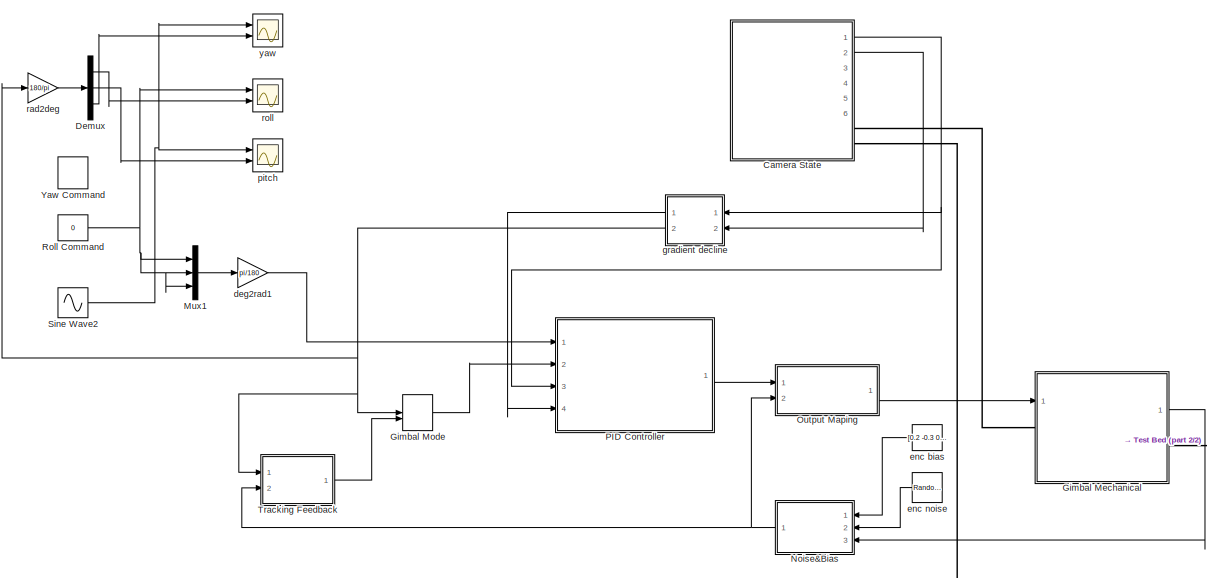
[diagram: root canvas - part 1/2, full width, top band]
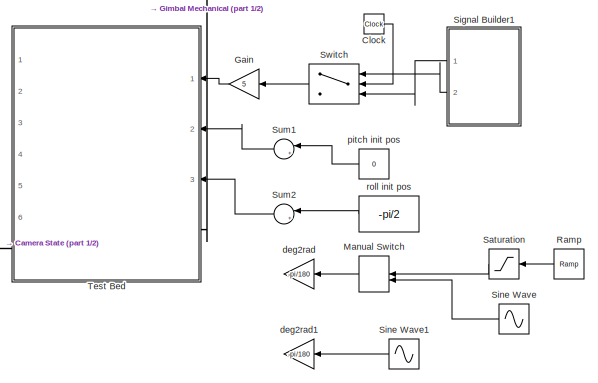
[diagram: root canvas - part 2/2, bottom right region]
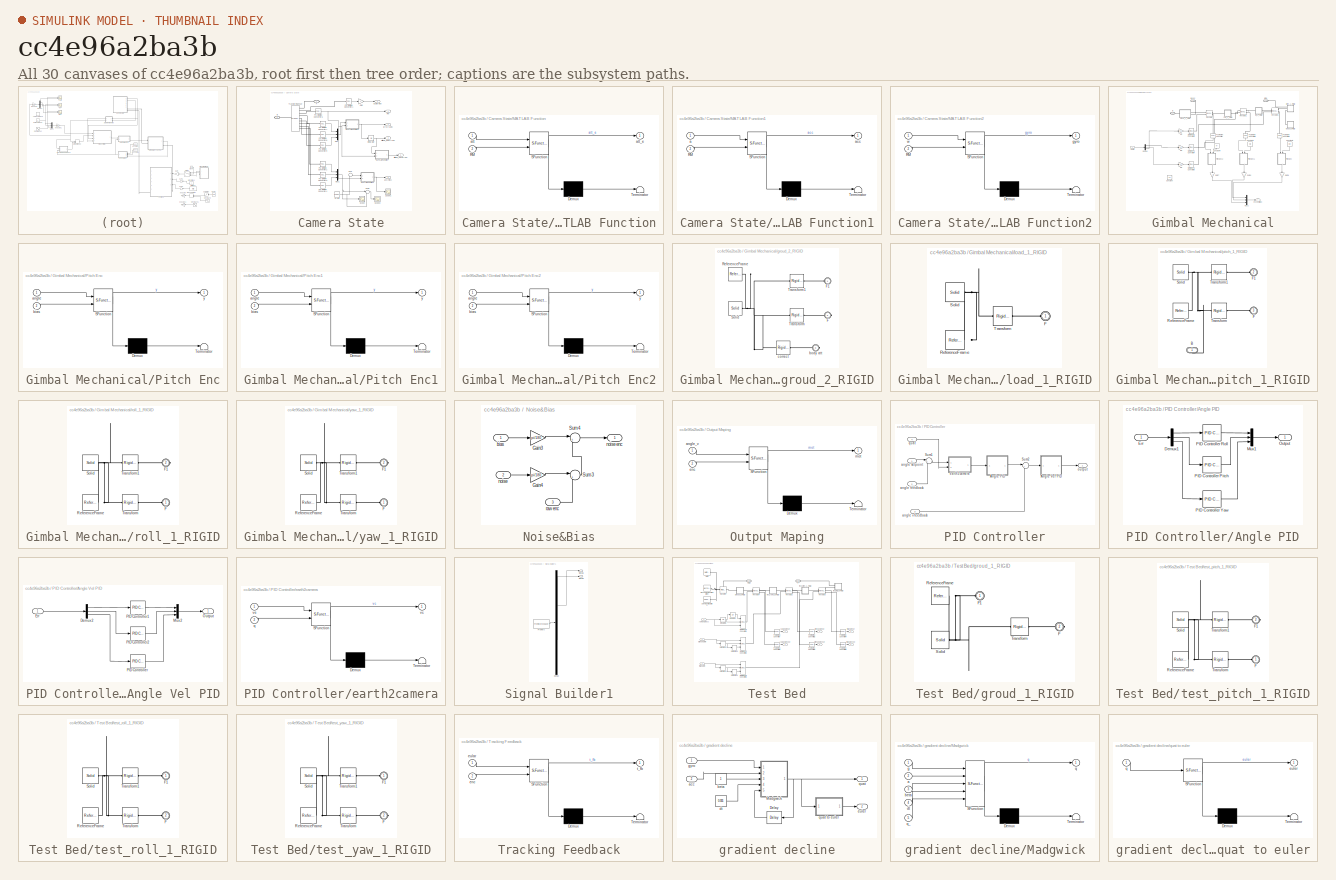
[diagram: thumbnail index - all 30 canvases of the model, root first then tree order]
MODEL slx_cc4e96a2ba3b
KIND model
CONFIG AbsTol = auto
CONFIG EnableMultiTasking = on
CONFIG FixedStep = 0.001
CONFIG MaxStep = auto
CONFIG MinStep = auto
CONFIG RelTol = 1e-3
CONFIG SampleTimeConstraint = Unconstrained
CONFIG Solver = ode14x
CONFIG SolverName = ode14x
CONFIG StartTime = 0.0
CONFIG StopTime = 10
BLOCK [SubSystem] Camera State
  Ports = [0, 6, 0, 0, 0, 0, 2]
  RequestExecContextInheritance = off
  Variant = off
BLOCK [PMIOPort] Camera State/B
  Port = 2
  Side = Right
BLOCK [PMIOPort] Camera State/F
  Port = 1
  Side = Right
BLOCK [Gain] Camera State/Gain
  Gain = -1
  OutDataTypeStr = Inherit: Inherit via internal rule
  ParamDataTypeStr = Inherit: Inherit via internal rule
  SaturateOnIntegerOverflow = off
BLOCK [Integrator] Camera State/Integrator
  Ports = [1, 1]
BLOCK [SubSystem] Camera State/MATLAB Function
  ErrorFcn = Stateflow.Translate.translate
  PermitHierarchicalResolution = ExplicitOnly
  Ports = [2, 1]
  RequestExecContextInheritance = off
  SFBlockType = MATLAB Function
  TreatAsAtomicUnit = on
  Variant = off
BLOCK [Demux] Camera State/MATLAB Function/ Demux 
  Outputs = 1
  Ports = [1, 1]
BLOCK [S-Function] Camera State/MATLAB Function/ SFunction 
  EnableBusSupport = on
  FunctionName = sf_sfun
  PortCounts = [2 2]
  Ports = [2, 2]
  SFcnIsStateOwnerBlock = off
  SFunctionDeploymentMode = off
  Tag = Stateflow S-Function gimbal_test_optm 7
BLOCK [Terminator] Camera State/MATLAB Function/ Terminator 
BLOCK [Inport] Camera State/MATLAB Function/RM
  IconDisplay = Port number
  Port = 2
BLOCK [Inport] Camera State/MATLAB Function/att
  IconDisplay = Port number
BLOCK [Outport] Camera State/MATLAB Function/att_e
  IconDisplay = Port number
BLOCK [SubSystem] Camera State/MATLAB Function1
  ErrorFcn = Stateflow.Translate.translate
  PermitHierarchicalResolution = ExplicitOnly
  Ports = [2, 1]
  RequestExecContextInheritance = off
  SFBlockType = MATLAB Function
  TreatAsAtomicUnit = on
  Variant = off
BLOCK [Demux] Camera State/MATLAB Function1/ Demux 
  Outputs = 1
  Ports = [1, 1]
BLOCK [S-Function] Camera State/MATLAB Function1/ SFunction 
  EnableBusSupport = on
  FunctionName = sf_sfun
  PortCounts = [2 2]
  Ports = [2, 2]
  SFcnIsStateOwnerBlock = off
  SFunctionDeploymentMode = off
  Tag = Stateflow S-Function gimbal_test_optm 13
BLOCK [Terminator] Camera State/MATLAB Function1/ Terminator 
BLOCK [Inport] Camera State/MATLAB Function1/RM
  IconDisplay = Port number
  Port = 2
BLOCK [Inport] Camera State/MATLAB Function1/a
  IconDisplay = Port number
BLOCK [Outport] Camera State/MATLAB Function1/acc
  IconDisplay = Port number
BLOCK [SubSystem] Camera State/MATLAB Function2
  ErrorFcn = Stateflow.Translate.translate
  PermitHierarchicalResolution = ExplicitOnly
  Ports = [2, 1]
  RequestExecContextInheritance = off
  SFBlockType = MATLAB Function
  TreatAsAtomicUnit = on
  Variant = off
BLOCK [Demux] Camera State/MATLAB Function2/ Demux 
  Outputs = 1
  Ports = [1, 1]
BLOCK [S-Function] Camera State/MATLAB Function2/ SFunction 
  EnableBusSupport = on
  FunctionName = sf_sfun
  PortCounts = [2 2]
  Ports = [2, 2]
  SFcnIsStateOwnerBlock = off
  SFunctionDeploymentMode = off
  Tag = Stateflow S-Function gimbal_test_optm 11
BLOCK [Terminator] Camera State/MATLAB Function2/ Terminator 
BLOCK [Inport] Camera State/MATLAB Function2/RM
  IconDisplay = Port number
  Port = 2
BLOCK [Outport] Camera State/MATLAB Function2/gyro
  IconDisplay = Port number
BLOCK [Inport] Camera State/MATLAB Function2/w
  IconDisplay = Port number
BLOCK [Mux] Camera State/Mux
  DisplayOption = bar
  Inputs = 3
  Ports = [3, 1]
BLOCK [Mux] Camera State/Mux1
  DisplayOption = bar
  Inputs = 3
  Ports = [3, 1]
BLOCK [Reference] Camera State/PS-Simulink Converter1  REF=nesl_utility/PS-Simulink
Converter
  Ports = [0, 1, 0, 0, 0, 1]
  SourceBlock = nesl_utility/PS-Simulink\nConverter
  SourceProductBaseCode = SS
  SourceProductName = Simscape
  SourceType = PS-Simulink\nConverter
BLOCK [Reference] Camera State/PS-Simulink Converter2  REF=nesl_utility/PS-Simulink
Converter
  Ports = [0, 1, 0, 0, 0, 1]
  SourceBlock = nesl_utility/PS-Simulink\nConverter
  SourceProductBaseCode = SS
  SourceProductName = Simscape
  SourceType = PS-Simulink\nConverter
BLOCK [Reference] Camera State/PS-Simulink Converter3  REF=nesl_utility/PS-Simulink
Converter
  Ports = [0, 1, 0, 0, 0, 1]
  SourceBlock = nesl_utility/PS-Simulink\nConverter
  SourceProductBaseCode = SS
  SourceProductName = Simscape
  SourceType = PS-Simulink\nConverter
BLOCK [Reference] Camera State/PS-Simulink Converter4  REF=nesl_utility/PS-Simulink
Converter
  Ports = [0, 1, 0, 0, 0, 1]
  SourceBlock = nesl_utility/PS-Simulink\nConverter
  SourceProductBaseCode = SS
  SourceProductName = Simscape
  SourceType = PS-Simulink\nConverter
BLOCK [Reference] Camera State/PS-Simulink Converter6  REF=nesl_utility/PS-Simulink
Converter
  Ports = [0, 1, 0, 0, 0, 1]
  SourceBlock = nesl_utility/PS-Simulink\nConverter
  SourceProductBaseCode = SS
  SourceProductName = Simscape
  SourceType = PS-Simulink\nConverter
BLOCK [Reference] Camera State/PS-Simulink Converter7  REF=nesl_utility/PS-Simulink
Converter
  Ports = [0, 1, 0, 0, 0, 1]
  SourceBlock = nesl_utility/PS-Simulink\nConverter
  SourceProductBaseCode = SS
  SourceProductName = Simscape
  SourceType = PS-Simulink\nConverter
BLOCK [Reference] Camera State/PS-Simulink Converter8  REF=nesl_utility/PS-Simulink
Converter
  Ports = [0, 1, 0, 0, 0, 1]
  SourceBlock = nesl_utility/PS-Simulink\nConverter
  SourceProductBaseCode = SS
  SourceProductName = Simscape
  SourceType = PS-Simulink\nConverter
BLOCK [Reference] Camera State/PS-Simulink Converter9  REF=nesl_utility/PS-Simulink
Converter
  Ports = [0, 1, 0, 0, 0, 1]
  SourceBlock = nesl_utility/PS-Simulink\nConverter
  SourceProductBaseCode = SS
  SourceProductName = Simscape
  SourceType = PS-Simulink\nConverter
BLOCK [Outport] Camera State/RM
  IconDisplay = Port number
  Port = 4
BLOCK [Scope] Camera State/Scope
  NumInputPorts = 1
  Ports = [1]
  ScopeSpecificationString = Simulink.scopes.TimeScopeBlockCfg('CurrentConfiguration', extmgr.ConfigurationSet(extmgr.Configuration('Core','General UI',true),extmgr.Configuration('Core','Source UI',true),extmgr.Configuration('Sources','WiredSimulink',true,'DataLoggingVariableName','ScopeData2'),extmgr.Configuration('Visuals','Time Domain',true,'SerializedDisplays',{struct('MinYLimReal','-62.38144','MaxYLimReal','40.43998','YL...<+1485ch>
BLOCK [Scope] Camera State/Scope1
  NumInputPorts = 1
  Ports = [1]
  ScopeSpecificationString = Simulink.scopes.TimeScopeBlockCfg('CurrentConfiguration', extmgr.ConfigurationSet(extmgr.Configuration('Core','General UI',true),extmgr.Configuration('Core','Source UI',true),extmgr.Configuration('Sources','WiredSimulink',true,'DataLoggingVariableName','ScopeData5'),extmgr.Configuration('Visuals','Time Domain',true,'SerializedDisplays',{struct('MinYLimReal','-11.33628','MaxYLimReal','3.92654','YLa...<+1471ch>
BLOCK [Scope] Camera State/Scope2
  NumInputPorts = 1
  Ports = [1]
  ScopeSpecificationString = Simulink.scopes.TimeScopeBlockCfg('CurrentConfiguration', extmgr.ConfigurationSet(extmgr.Configuration('Core','General UI',true),extmgr.Configuration('Core','Source UI',true),extmgr.Configuration('Sources','WiredSimulink',true,'DataLoggingVariableName','ScopeData6'),extmgr.Configuration('Visuals','Time Domain',true,'SerializedDisplays',{struct('MinYLimReal','-22.29282','MaxYLimReal','8.50216','YLa...<+1435ch>
BLOCK [Sum] Camera State/Sum
  IconShape = round
  InputSameDT = off
  Inputs = |++
  OutDataTypeStr = Inherit: Inherit via internal rule
  Ports = [2, 1]
  SaturateOnIntegerOverflow = off
BLOCK [Sum] Camera State/Sum1
  IconShape = round
  InputSameDT = off
  Inputs = |++
  OutDataTypeStr = Inherit: Inherit via internal rule
  Ports = [2, 1]
  SaturateOnIntegerOverflow = off
BLOCK [Reference] Camera State/Transform Sensor  REF=sm_lib/Frames and
Transforms/Transform
Sensor
  Ports = [0, 0, 0, 0, 0, 1, 9]
  SourceBlock = sm_lib/Frames and\nTransforms/Transform\nSensor
  SourceProductBaseCode = MS
  SourceProductName = Simscape Multibody
  SourceType = Transform\nSensor
BLOCK [Outport] Camera State/acc (m//ss)
  IconDisplay = Port number
  Port = 2
BLOCK [Outport] Camera State/attitude_body (rad)
  IconDisplay = Port number
  Port = 3
BLOCK [Outport] Camera State/attitude_earth (rad)
  IconDisplay = Port number
  Port = 6
BLOCK [Constant] Camera State/gravity 
  Value = [0 0 -9.81]
BLOCK [Outport] Camera State/gyro (rad//s)
  IconDisplay = Port number
BLOCK [Outport] Camera State/quaternion 
  IconDisplay = Port number
  Port = 5
BLOCK [Clock] Clock
BLOCK [Demux] Demux
  DisplayOption = bar
  Outputs = 3
  Ports = [1, 3]
BLOCK [Gain] Gain
  Gain = 5
  OutDataTypeStr = Inherit: Inherit via internal rule
  ParamDataTypeStr = Inherit: Inherit via internal rule
  SaturateOnIntegerOverflow = off
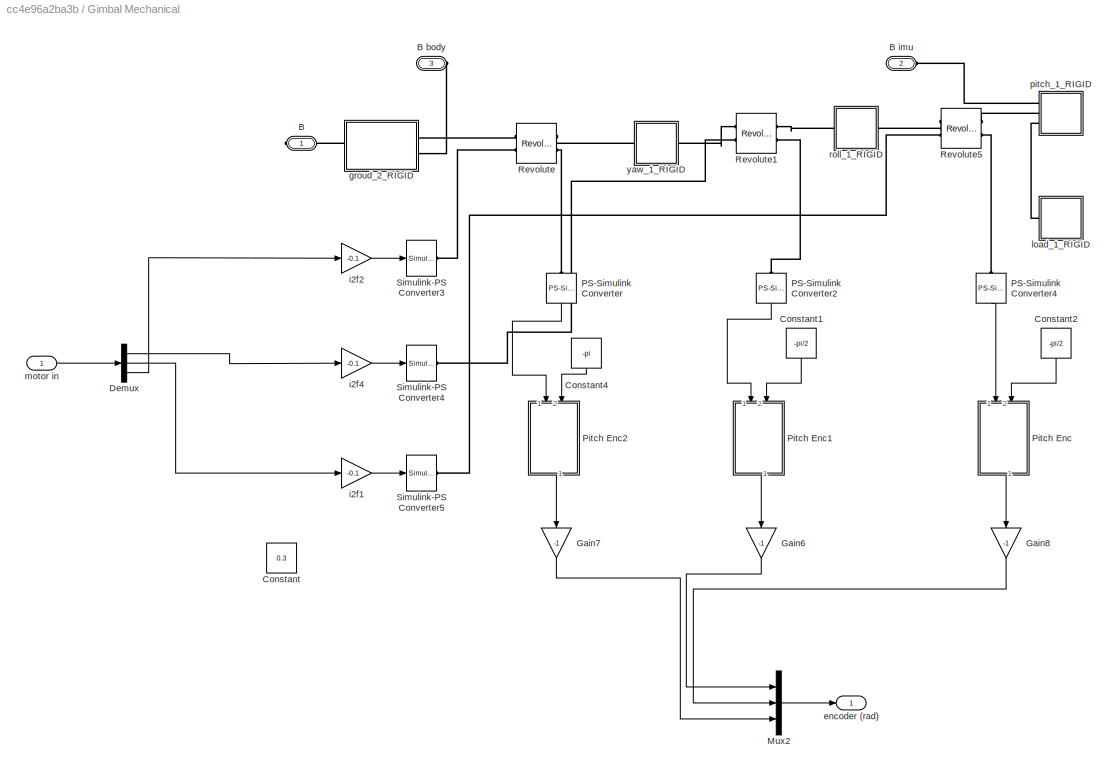
BLOCK [SubSystem] Gimbal Mechanical
  Ports = [1, 1, 0, 0, 0, 2, 1]
  RequestExecContextInheritance = off
  Variant = off
BLOCK [PMIOPort] Gimbal Mechanical/B
  Port = 1
  Side = Right
BLOCK [PMIOPort] Gimbal Mechanical/B body
  Port = 3
  Side = Left
BLOCK [PMIOPort] Gimbal Mechanical/B imu
  Port = 2
  Side = Left
BLOCK [Constant] Gimbal Mechanical/Constant
  Value = 0.3
BLOCK [Constant] Gimbal Mechanical/Constant1
  Value = -pi/2
BLOCK [Constant] Gimbal Mechanical/Constant2
  Value = -pi/2
BLOCK [Constant] Gimbal Mechanical/Constant4
  Value = -pi
BLOCK [Demux] Gimbal Mechanical/Demux
  DisplayOption = bar
  Outputs = 3
  Ports = [1, 3]
BLOCK [Gain] Gimbal Mechanical/Gain6
  Gain = -1
  OutDataTypeStr = Inherit: Inherit via internal rule
  ParamDataTypeStr = Inherit: Inherit via internal rule
  SaturateOnIntegerOverflow = off
BLOCK [Gain] Gimbal Mechanical/Gain7
  Gain = -1
  OutDataTypeStr = Inherit: Inherit via internal rule
  ParamDataTypeStr = Inherit: Inherit via internal rule
  SaturateOnIntegerOverflow = off
BLOCK [Gain] Gimbal Mechanical/Gain8
  Gain = -1
  OutDataTypeStr = Inherit: Inherit via internal rule
  ParamDataTypeStr = Inherit: Inherit via internal rule
  SaturateOnIntegerOverflow = off
BLOCK [Mux] Gimbal Mechanical/Mux2
  DisplayOption = bar
  Inputs = 3
  Ports = [3, 1]
BLOCK [Reference] Gimbal Mechanical/PS-Simulink Converter  REF=nesl_utility/PS-Simulink
Converter
  Ports = [0, 1, 0, 0, 0, 1]
  SourceBlock = nesl_utility/PS-Simulink\nConverter
  SourceProductBaseCode = SS
  SourceProductName = Simscape
  SourceType = PS-Simulink\nConverter
BLOCK [Reference] Gimbal Mechanical/PS-Simulink Converter2  REF=nesl_utility/PS-Simulink
Converter
  Ports = [0, 1, 0, 0, 0, 1]
  SourceBlock = nesl_utility/PS-Simulink\nConverter
  SourceProductBaseCode = SS
  SourceProductName = Simscape
  SourceType = PS-Simulink\nConverter
BLOCK [Reference] Gimbal Mechanical/PS-Simulink Converter4  REF=nesl_utility/PS-Simulink
Converter
  Ports = [0, 1, 0, 0, 0, 1]
  SourceBlock = nesl_utility/PS-Simulink\nConverter
  SourceProductBaseCode = SS
  SourceProductName = Simscape
  SourceType = PS-Simulink\nConverter
BLOCK [SubSystem] Gimbal Mechanical/Pitch Enc
  ErrorFcn = Stateflow.Translate.translate
  PermitHierarchicalResolution = ExplicitOnly
  Ports = [2, 1]
  RequestExecContextInheritance = off
  SFBlockType = MATLAB Function
  TreatAsAtomicUnit = on
  Variant = off
BLOCK [Demux] Gimbal Mechanical/Pitch Enc/ Demux 
  Outputs = 1
  Ports = [1, 1]
BLOCK [S-Function] Gimbal Mechanical/Pitch Enc/ SFunction 
  EnableBusSupport = on
  FunctionName = sf_sfun
  PortCounts = [2 2]
  Ports = [2, 2]
  SFcnIsStateOwnerBlock = off
  SFunctionDeploymentMode = off
  Tag = Stateflow S-Function gimbal_test_optm 4
BLOCK [Terminator] Gimbal Mechanical/Pitch Enc/ Terminator 
BLOCK [Inport] Gimbal Mechanical/Pitch Enc/angle
  IconDisplay = Port number
BLOCK [Inport] Gimbal Mechanical/Pitch Enc/bias
  IconDisplay = Port number
  Port = 2
BLOCK [Outport] Gimbal Mechanical/Pitch Enc/y
  IconDisplay = Port number
BLOCK [SubSystem] Gimbal Mechanical/Pitch Enc1
  ErrorFcn = Stateflow.Translate.translate
  PermitHierarchicalResolution = ExplicitOnly
  Ports = [2, 1]
  RequestExecContextInheritance = off
  SFBlockType = MATLAB Function
  TreatAsAtomicUnit = on
  Variant = off
BLOCK [Demux] Gimbal Mechanical/Pitch Enc1/ Demux 
  Outputs = 1
  Ports = [1, 1]
BLOCK [S-Function] Gimbal Mechanical/Pitch Enc1/ SFunction 
  EnableBusSupport = on
  FunctionName = sf_sfun
  PortCounts = [2 2]
  Ports = [2, 2]
  SFcnIsStateOwnerBlock = off
  SFunctionDeploymentMode = off
  Tag = Stateflow S-Function gimbal_test_optm 5
BLOCK [Terminator] Gimbal Mechanical/Pitch Enc1/ Terminator 
BLOCK [Inport] Gimbal Mechanical/Pitch Enc1/angle
  IconDisplay = Port number
BLOCK [Inport] Gimbal Mechanical/Pitch Enc1/bias
  IconDisplay = Port number
  Port = 2
BLOCK [Outport] Gimbal Mechanical/Pitch Enc1/y
  IconDisplay = Port number
BLOCK [SubSystem] Gimbal Mechanical/Pitch Enc2
  ErrorFcn = Stateflow.Translate.translate
  PermitHierarchicalResolution = ExplicitOnly
  Ports = [2, 1]
  RequestExecContextInheritance = off
  SFBlockType = MATLAB Function
  TreatAsAtomicUnit = on
  Variant = off
BLOCK [Demux] Gimbal Mechanical/Pitch Enc2/ Demux 
  Outputs = 1
  Ports = [1, 1]
BLOCK [S-Function] Gimbal Mechanical/Pitch Enc2/ SFunction 
  EnableBusSupport = on
  FunctionName = sf_sfun
  PortCounts = [2 2]
  Ports = [2, 2]
  SFcnIsStateOwnerBlock = off
  SFunctionDeploymentMode = off
  Tag = Stateflow S-Function gimbal_test_optm 6
BLOCK [Terminator] Gimbal Mechanical/Pitch Enc2/ Terminator 
BLOCK [Inport] Gimbal Mechanical/Pitch Enc2/angle
  IconDisplay = Port number
BLOCK [Inport] Gimbal Mechanical/Pitch Enc2/bias
  IconDisplay = Port number
  Port = 2
BLOCK [Outport] Gimbal Mechanical/Pitch Enc2/y
  IconDisplay = Port number
BLOCK [Reference] Gimbal Mechanical/Revolute  REF=sm_lib/Joints/Revolute Joint
  Ports = [0, 0, 0, 0, 0, 2, 2]
  SourceBlock = sm_lib/Joints/Revolute Joint
  SourceProductBaseCode = MS
  SourceProductName = Simscape Multibody
  SourceType = Revolute Joint
BLOCK [Reference] Gimbal Mechanical/Revolute1  REF=sm_lib/Joints/Revolute Joint
  Ports = [0, 0, 0, 0, 0, 2, 2]
  SourceBlock = sm_lib/Joints/Revolute Joint
  SourceProductBaseCode = MS
  SourceProductName = Simscape Multibody
  SourceType = Revolute Joint
BLOCK [Reference] Gimbal Mechanical/Revolute5  REF=sm_lib/Joints/Revolute Joint
  Ports = [0, 0, 0, 0, 0, 2, 2]
  SourceBlock = sm_lib/Joints/Revolute Joint
  SourceProductBaseCode = MS
  SourceProductName = Simscape Multibody
  SourceType = Revolute Joint
BLOCK [Reference] Gimbal Mechanical/Simulink-PS Converter3  REF=nesl_utility/Simulink-PS
Converter
  Ports = [1, 0, 0, 0, 0, 0, 1]
  SourceBlock = nesl_utility/Simulink-PS\nConverter
  SourceProductBaseCode = SS
  SourceProductName = Simscape
  SourceType = Simulink-PS\nConverter
BLOCK [Reference] Gimbal Mechanical/Simulink-PS Converter4  REF=nesl_utility/Simulink-PS
Converter
  Ports = [1, 0, 0, 0, 0, 0, 1]
  SourceBlock = nesl_utility/Simulink-PS\nConverter
  SourceProductBaseCode = SS
  SourceProductName = Simscape
  SourceType = Simulink-PS\nConverter
BLOCK [Reference] Gimbal Mechanical/Simulink-PS Converter5  REF=nesl_utility/Simulink-PS
Converter
  Ports = [1, 0, 0, 0, 0, 0, 1]
  SourceBlock = nesl_utility/Simulink-PS\nConverter
  SourceProductBaseCode = SS
  SourceProductName = Simscape
  SourceType = Simulink-PS\nConverter
BLOCK [Outport] Gimbal Mechanical/encoder (rad)
  IconDisplay = Port number
BLOCK [SubSystem] Gimbal Mechanical/groud_2_RIGID
  Ports = [0, 0, 0, 0, 0, 1, 2]
  RequestExecContextInheritance = off
  Variant = off
BLOCK [PMIOPort] Gimbal Mechanical/groud_2_RIGID/F
  Port = 2
  Side = Right
BLOCK [PMIOPort] Gimbal Mechanical/groud_2_RIGID/F1
  Port = 1
  Side = Left
BLOCK [Reference] Gimbal Mechanical/groud_2_RIGID/ReferenceFrame  REF=sm_lib/Frames and
Transforms/Reference
Frame
  Ports = [0, 0, 0, 0, 0, 0, 1]
  SourceBlock = sm_lib/Frames and\nTransforms/Reference\nFrame
  SourceProductBaseCode = MS
  SourceProductName = Simscape Multibody
  SourceType = Reference\nFrame
BLOCK [Reference] Gimbal Mechanical/groud_2_RIGID/Solid  REF=sm_lib/Body Elements/Solid
  Ports = [0, 0, 0, 0, 0, 0, 1]
  SourceBlock = sm_lib/Body Elements/Solid
  SourceProductBaseCode = MS
  SourceProductName = Simscape Multibody
  SourceType = Solid
BLOCK [Reference] Gimbal Mechanical/groud_2_RIGID/Transform  REF=sm_lib/Frames and
Transforms/Rigid
Transform
  Ports = [0, 0, 0, 0, 0, 1, 1]
  SourceBlock = sm_lib/Frames and\nTransforms/Rigid\nTransform
  SourceProductBaseCode = MS
  SourceProductName = Simscape Multibody
  SourceType = Rigid\nTransform
BLOCK [Reference] Gimbal Mechanical/groud_2_RIGID/Transform1  REF=sm_lib/Frames and
Transforms/Rigid
Transform
  Ports = [0, 0, 0, 0, 0, 1, 1]
  SourceBlock = sm_lib/Frames and\nTransforms/Rigid\nTransform
  SourceProductBaseCode = MS
  SourceProductName = Simscape Multibody
  SourceType = Rigid\nTransform
BLOCK [PMIOPort] Gimbal Mechanical/groud_2_RIGID/body att 
  Port = 3
  Side = Right
BLOCK [Reference] Gimbal Mechanical/groud_2_RIGID/correct   REF=sm_lib/Frames and
Transforms/Rigid
Transform
  Ports = [0, 0, 0, 0, 0, 1, 1]
  SourceBlock = sm_lib/Frames and\nTransforms/Rigid\nTransform
  SourceProductBaseCode = MS
  SourceProductName = Simscape Multibody
  SourceType = Rigid\nTransform
BLOCK [Gain] Gimbal Mechanical/i2f1
  Gain = -0.1
  OutDataTypeStr = Inherit: Inherit via internal rule
  ParamDataTypeStr = Inherit: Inherit via internal rule
  SaturateOnIntegerOverflow = off
BLOCK [Gain] Gimbal Mechanical/i2f2
  Gain = -0.1
  OutDataTypeStr = Inherit: Inherit via internal rule
  ParamDataTypeStr = Inherit: Inherit via internal rule
  SaturateOnIntegerOverflow = off
BLOCK [Gain] Gimbal Mechanical/i2f4
  Gain = -0.1
  OutDataTypeStr = Inherit: Inherit via internal rule
  ParamDataTypeStr = Inherit: Inherit via internal rule
  SaturateOnIntegerOverflow = off
BLOCK [SubSystem] Gimbal Mechanical/load_1_RIGID
  Ports = [0, 0, 0, 0, 0, 1]
  RequestExecContextInheritance = off
  Variant = off
BLOCK [PMIOPort] Gimbal Mechanical/load_1_RIGID/F
  Port = 1
  Side = Left
BLOCK [Reference] Gimbal Mechanical/load_1_RIGID/ReferenceFrame  REF=sm_lib/Frames and
Transforms/Reference
Frame
  Ports = [0, 0, 0, 0, 0, 0, 1]
  SourceBlock = sm_lib/Frames and\nTransforms/Reference\nFrame
  SourceProductBaseCode = MS
  SourceProductName = Simscape Multibody
  SourceType = Reference\nFrame
BLOCK [Reference] Gimbal Mechanical/load_1_RIGID/Solid  REF=sm_lib/Body Elements/Solid
  Ports = [0, 0, 0, 0, 0, 0, 1]
  SourceBlock = sm_lib/Body Elements/Solid
  SourceProductBaseCode = MS
  SourceProductName = Simscape Multibody
  SourceType = Solid
BLOCK [Reference] Gimbal Mechanical/load_1_RIGID/Transform  REF=sm_lib/Frames and
Transforms/Rigid
Transform
  Ports = [0, 0, 0, 0, 0, 1, 1]
  SourceBlock = sm_lib/Frames and\nTransforms/Rigid\nTransform
  SourceProductBaseCode = MS
  SourceProductName = Simscape Multibody
  SourceType = Rigid\nTransform
BLOCK [Inport] Gimbal Mechanical/motor in
  IconDisplay = Port number
BLOCK [SubSystem] Gimbal Mechanical/pitch_1_RIGID
  Ports = [0, 0, 0, 0, 0, 3]
  RequestExecContextInheritance = off
  Variant = off
BLOCK [PMIOPort] Gimbal Mechanical/pitch_1_RIGID/B
  Port = 1
  Side = Left
BLOCK [PMIOPort] Gimbal Mechanical/pitch_1_RIGID/F
  Port = 3
  Side = Left
BLOCK [PMIOPort] Gimbal Mechanical/pitch_1_RIGID/F1
  Port = 2
  Side = Left
BLOCK [Reference] Gimbal Mechanical/pitch_1_RIGID/ReferenceFrame  REF=sm_lib/Frames and
Transforms/Reference
Frame
  Ports = [0, 0, 0, 0, 0, 0, 1]
  SourceBlock = sm_lib/Frames and\nTransforms/Reference\nFrame
  SourceProductBaseCode = MS
  SourceProductName = Simscape Multibody
  SourceType = Reference\nFrame
BLOCK [Reference] Gimbal Mechanical/pitch_1_RIGID/Solid  REF=sm_lib/Body Elements/Solid
  Ports = [0, 0, 0, 0, 0, 0, 1]
  SourceBlock = sm_lib/Body Elements/Solid
  SourceProductBaseCode = MS
  SourceProductName = Simscape Multibody
  SourceType = Solid
BLOCK [Reference] Gimbal Mechanical/pitch_1_RIGID/Transform  REF=sm_lib/Frames and
Transforms/Rigid
Transform
  Ports = [0, 0, 0, 0, 0, 1, 1]
  SourceBlock = sm_lib/Frames and\nTransforms/Rigid\nTransform
  SourceProductBaseCode = MS
  SourceProductName = Simscape Multibody
  SourceType = Rigid\nTransform
BLOCK [Reference] Gimbal Mechanical/pitch_1_RIGID/Transform1  REF=sm_lib/Frames and
Transforms/Rigid
Transform
  Ports = [0, 0, 0, 0, 0, 1, 1]
  SourceBlock = sm_lib/Frames and\nTransforms/Rigid\nTransform
  SourceProductBaseCode = MS
  SourceProductName = Simscape Multibody
  SourceType = Rigid\nTransform
BLOCK [SubSystem] Gimbal Mechanical/roll_1_RIGID
  Ports = [0, 0, 0, 0, 0, 1, 1]
  RequestExecContextInheritance = off
  Variant = off
BLOCK [PMIOPort] Gimbal Mechanical/roll_1_RIGID/F
  Port = 1
  Side = Left
BLOCK [PMIOPort] Gimbal Mechanical/roll_1_RIGID/F1
  Port = 2
  Side = Right
BLOCK [Reference] Gimbal Mechanical/roll_1_RIGID/ReferenceFrame  REF=sm_lib/Frames and
Transforms/Reference
Frame
  Ports = [0, 0, 0, 0, 0, 0, 1]
  SourceBlock = sm_lib/Frames and\nTransforms/Reference\nFrame
  SourceProductBaseCode = MS
  SourceProductName = Simscape Multibody
  SourceType = Reference\nFrame
BLOCK [Reference] Gimbal Mechanical/roll_1_RIGID/Solid  REF=sm_lib/Body Elements/Solid
  Ports = [0, 0, 0, 0, 0, 0, 1]
  SourceBlock = sm_lib/Body Elements/Solid
  SourceProductBaseCode = MS
  SourceProductName = Simscape Multibody
  SourceType = Solid
BLOCK [Reference] Gimbal Mechanical/roll_1_RIGID/Transform  REF=sm_lib/Frames and
Transforms/Rigid
Transform
  Ports = [0, 0, 0, 0, 0, 1, 1]
  SourceBlock = sm_lib/Frames and\nTransforms/Rigid\nTransform
  SourceProductBaseCode = MS
  SourceProductName = Simscape Multibody
  SourceType = Rigid\nTransform
BLOCK [Reference] Gimbal Mechanical/roll_1_RIGID/Transform1  REF=sm_lib/Frames and
Transforms/Rigid
Transform
  Ports = [0, 0, 0, 0, 0, 1, 1]
  SourceBlock = sm_lib/Frames and\nTransforms/Rigid\nTransform
  SourceProductBaseCode = MS
  SourceProductName = Simscape Multibody
  SourceType = Rigid\nTransform
BLOCK [SubSystem] Gimbal Mechanical/yaw_1_RIGID
  Ports = [0, 0, 0, 0, 0, 1, 1]
  RequestExecContextInheritance = off
  Variant = off
BLOCK [PMIOPort] Gimbal Mechanical/yaw_1_RIGID/F
  Port = 1
  Side = Left
BLOCK [PMIOPort] Gimbal Mechanical/yaw_1_RIGID/F1
  Port = 2
  Side = Right
BLOCK [Reference] Gimbal Mechanical/yaw_1_RIGID/ReferenceFrame  REF=sm_lib/Frames and
Transforms/Reference
Frame
  Ports = [0, 0, 0, 0, 0, 0, 1]
  SourceBlock = sm_lib/Frames and\nTransforms/Reference\nFrame
  SourceProductBaseCode = MS
  SourceProductName = Simscape Multibody
  SourceType = Reference\nFrame
BLOCK [Reference] Gimbal Mechanical/yaw_1_RIGID/Solid  REF=sm_lib/Body Elements/Solid
  Ports = [0, 0, 0, 0, 0, 0, 1]
  SourceBlock = sm_lib/Body Elements/Solid
  SourceProductBaseCode = MS
  SourceProductName = Simscape Multibody
  SourceType = Solid
BLOCK [Reference] Gimbal Mechanical/yaw_1_RIGID/Transform  REF=sm_lib/Frames and
Transforms/Rigid
Transform
  Ports = [0, 0, 0, 0, 0, 1, 1]
  SourceBlock = sm_lib/Frames and\nTransforms/Rigid\nTransform
  SourceProductBaseCode = MS
  SourceProductName = Simscape Multibody
  SourceType = Rigid\nTransform
BLOCK [Reference] Gimbal Mechanical/yaw_1_RIGID/Transform1  REF=sm_lib/Frames and
Transforms/Rigid
Transform
  Ports = [0, 0, 0, 0, 0, 1, 1]
  SourceBlock = sm_lib/Frames and\nTransforms/Rigid\nTransform
  SourceProductBaseCode = MS
  SourceProductName = Simscape Multibody
  SourceType = Rigid\nTransform
BLOCK [ManualSwitch] Gimbal Mode
  CurrentSetting = 0
BLOCK [ManualSwitch] Manual Switch
  CurrentSetting = 0
BLOCK [Mux] Mux1
  DisplayOption = bar
  Inputs = 3
  Ports = [3, 1]
BLOCK [SubSystem] Noise&Bias
  Ports = [3, 1]
  RequestExecContextInheritance = off
  Variant = off
BLOCK [Gain] Noise&Bias/Gain3
  Gain = pi/180
  OutDataTypeStr = Inherit: Inherit via internal rule
  ParamDataTypeStr = Inherit: Inherit via internal rule
  SaturateOnIntegerOverflow = off
BLOCK [Gain] Noise&Bias/Gain4
  Gain = pi/180
  OutDataTypeStr = Inherit: Inherit via internal rule
  ParamDataTypeStr = Inherit: Inherit via internal rule
  SaturateOnIntegerOverflow = off
BLOCK [Sum] Noise&Bias/Sum3
  IconShape = round
  InputSameDT = off
  Inputs = |++
  OutDataTypeStr = Inherit: Inherit via internal rule
  Ports = [2, 1]
  SaturateOnIntegerOverflow = off
BLOCK [Sum] Noise&Bias/Sum4
  IconShape = round
  InputSameDT = off
  Inputs = |++
  OutDataTypeStr = Inherit: Inherit via internal rule
  Ports = [2, 1]
  SaturateOnIntegerOverflow = off
BLOCK [Inport] Noise&Bias/bias
  IconDisplay = Port number
BLOCK [Inport] Noise&Bias/noise
  IconDisplay = Port number
  Port = 2
BLOCK [Outport] Noise&Bias/noise enc
  IconDisplay = Port number
BLOCK [Inport] Noise&Bias/raw enc
  IconDisplay = Port number
  Port = 3
BLOCK [SubSystem] Output Maping
  ErrorFcn = Stateflow.Translate.translate
  PermitHierarchicalResolution = ExplicitOnly
  Ports = [2, 1]
  RequestExecContextInheritance = off
  SFBlockType = MATLAB Function
  TreatAsAtomicUnit = on
  Variant = off
BLOCK [Demux] Output Maping/ Demux 
  Outputs = 1
  Ports = [1, 1]
BLOCK [S-Function] Output Maping/ SFunction 
  EnableBusSupport = on
  FunctionName = sf_sfun
  PortCounts = [2 2]
  Ports = [2, 2]
  SFcnIsStateOwnerBlock = off
  SFunctionDeploymentMode = off
  Tag = Stateflow S-Function gimbal_test_optm 25
BLOCK [Terminator] Output Maping/ Terminator 
BLOCK [Inport] Output Maping/angle_v
  IconDisplay = Port number
BLOCK [Inport] Output Maping/enc
  IconDisplay = Port number
  Port = 2
BLOCK [Outport] Output Maping/mot
  IconDisplay = Port number
BLOCK [SubSystem] PID Controller
  Ports = [4, 1]
  RequestExecContextInheritance = off
  TreatAsAtomicUnit = on
  Variant = off
BLOCK [SubSystem] PID Controller/Angle PID
  Ports = [1, 1]
  RequestExecContextInheritance = off
  Variant = off
BLOCK [Demux] PID Controller/Angle PID/Demux1
  DisplayOption = bar
  Outputs = 3
  Ports = [1, 3]
BLOCK [Inport] PID Controller/Angle PID/Err
  IconDisplay = Port number
BLOCK [Mux] PID Controller/Angle PID/Mux1
  DisplayOption = bar
  Inputs = 3
  Ports = [3, 1]
BLOCK [Outport] PID Controller/Angle PID/Output
  IconDisplay = Port number
BLOCK [Reference] PID Controller/Angle PID/PID Controller Pitch  REF=simulink/Continuous/PID Controller
  Ports = [1, 1]
  SourceBlock = simulink/Continuous/PID Controller
  SourceProductBaseCode = SL
  SourceProductName = Simulink
  SourceType = PID 1dof
BLOCK [Reference] PID Controller/Angle PID/PID Controller Roll  REF=simulink/Continuous/PID Controller
  Ports = [1, 1]
  SourceBlock = simulink/Continuous/PID Controller
  SourceProductBaseCode = SL
  SourceProductName = Simulink
  SourceType = PID 1dof
BLOCK [Reference] PID Controller/Angle PID/PID Controller Yaw  REF=simulink/Continuous/PID Controller
  Ports = [1, 1]
  SourceBlock = simulink/Continuous/PID Controller
  SourceProductBaseCode = SL
  SourceProductName = Simulink
  SourceType = PID 1dof
BLOCK [SubSystem] PID Controller/Angle Vel PID
  Ports = [1, 1]
  RequestExecContextInheritance = off
  Variant = off
BLOCK [Demux] PID Controller/Angle Vel PID/Demux2
  DisplayOption = bar
  Outputs = 3
  Ports = [1, 3]
BLOCK [Inport] PID Controller/Angle Vel PID/Err
  IconDisplay = Port number
BLOCK [Mux] PID Controller/Angle Vel PID/Mux2
  DisplayOption = bar
  Inputs = 3
  Ports = [3, 1]
BLOCK [Outport] PID Controller/Angle Vel PID/Output
  IconDisplay = Port number
BLOCK [Reference] PID Controller/Angle Vel PID/PID Controller  REF=simulink/Continuous/PID Controller
  Ports = [1, 1]
  SourceBlock = simulink/Continuous/PID Controller
  SourceProductBaseCode = SL
  SourceProductName = Simulink
  SourceType = PID 1dof
BLOCK [Reference] PID Controller/Angle Vel PID/PID Controller1  REF=simulink/Continuous/PID Controller
  Ports = [1, 1]
  SourceBlock = simulink/Continuous/PID Controller
  SourceProductBaseCode = SL
  SourceProductName = Simulink
  SourceType = PID 1dof
BLOCK [Reference] PID Controller/Angle Vel PID/PID Controller2  REF=simulink/Continuous/PID Controller
  Ports = [1, 1]
  SourceBlock = simulink/Continuous/PID Controller
  SourceProductBaseCode = SL
  SourceProductName = Simulink
  SourceType = PID 1dof
BLOCK [Sum] PID Controller/Sum1
  IconShape = round
  InputSameDT = off
  Inputs = |+-
  OutDataTypeStr = Inherit: Inherit via internal rule
  Ports = [2, 1]
  SaturateOnIntegerOverflow = off
BLOCK [Sum] PID Controller/Sum2
  IconShape = round
  InputSameDT = off
  Inputs = |+-
  OutDataTypeStr = Inherit: Inherit via internal rule
  Ports = [2, 1]
  SaturateOnIntegerOverflow = off
BLOCK [Inport] PID Controller/angle feedback
  IconDisplay = Port number
  Port = 2
BLOCK [Inport] PID Controller/angle setpoint
  IconDisplay = Port number
BLOCK [Inport] PID Controller/angle v feedback
  IconDisplay = Port number
  Port = 3
BLOCK [SubSystem] PID Controller/earth2camera
  ErrorFcn = Stateflow.Translate.translate
  PermitHierarchicalResolution = ExplicitOnly
  Ports = [2, 1]
  RequestExecContextInheritance = off
  SFBlockType = MATLAB Function
  TreatAsAtomicUnit = on
  Variant = off
BLOCK [Demux] PID Controller/earth2camera/ Demux 
  Outputs = 1
  Ports = [1, 1]
BLOCK [S-Function] PID Controller/earth2camera/ SFunction 
  EnableBusSupport = on
  FunctionName = sf_sfun
  PortCounts = [2 2]
  Ports = [2, 2]
  SFcnIsStateOwnerBlock = off
  SFunctionDeploymentMode = off
  Tag = Stateflow S-Function gimbal_test_optm 2
BLOCK [Terminator] PID Controller/earth2camera/ Terminator 
BLOCK [Inport] PID Controller/earth2camera/q
  IconDisplay = Port number
  Port = 2
BLOCK [Outport] PID Controller/earth2camera/vc
  IconDisplay = Port number
BLOCK [Inport] PID Controller/earth2camera/ve
  IconDisplay = Port number
BLOCK [Outport] PID Controller/output
  IconDisplay = Port number
BLOCK [Inport] PID Controller/quat
  IconDisplay = Port number
  Port = 4
BLOCK [Reference] Ramp  REF=simulink/Sources/Ramp
  Ports = [0, 1]
  SourceBlock = simulink/Sources/Ramp
  SourceProductBaseCode = SL
  SourceProductName = Simulink
  SourceType = Ramp
BLOCK [Constant] Roll Command
  Value = 0
BLOCK [Saturate] Saturation
  InputPortMap = u0
  LowerLimit = -70
  Ports = [1, 1]
  UpperLimit = 100
BLOCK [SubSystem] Signal Builder1
  ClipboardFcn = sigbuilder_block('clipboard');
  CloseFcn = sigbuilder_block('close');
  ContinueFcn = sigbuilder_block('continue');
  CopyFcn = sigbuilder_block('copy');
  DeleteFcn = sigbuilder_block('delete');
  LoadFcn = sigbuilder_block('load');
  MaskHideContents = on
  ModelCloseFcn = sigbuilder_block('modelClose');
  NameChangeFcn = sigbuilder_block('namechange');
  OpenFcn = sigbuilder_block('open',[6 74.25 1188 459 ]);
  PauseFcn = sigbuilder_block('pause');
  Ports = [0, 2]
  PreSaveFcn = sigbuilder_block('preSave');
  RequestExecContextInheritance = off
  StartFcn = sigbuilder_block('start');
  StopFcn = sigbuilder_block('stop');
  Tag = STV Subsys
  Variant = off
BLOCK [Demux] Signal Builder1/Demux
  Outputs = 2
  Ports = [1, 2]
  Tag = STV Demux
BLOCK [FromWorkspace] Signal Builder1/FromWs
  SampleTime = 0
  Tag = STV FromWs
  VariableName = tuvar
  ZeroCross = on
BLOCK [Outport] Signal Builder1/Signal 1
  IconDisplay = Port number
  Tag = STV Outport
BLOCK [Outport] Signal Builder1/Signal 2
  IconDisplay = Port number
  Port = 2
  Tag = STV Outport
BLOCK [Sin] Sine Wave
  Amplitude = 50
  Frequency = 2
  Ports = [0, 1]
  SampleTime = 0
BLOCK [Sin] Sine Wave1
  Amplitude = 60
  Frequency = 1.7
  Ports = [0, 1]
  SampleTime = 0
BLOCK [Sin] Sine Wave2
  Amplitude = 45
  Frequency = 3
  Ports = [0, 1]
  SampleTime = 0
BLOCK [Sum] Sum1
  IconShape = round
  InputSameDT = off
  Inputs = |++
  OutDataTypeStr = Inherit: Inherit via internal rule
  Ports = [2, 1]
  SaturateOnIntegerOverflow = off
BLOCK [Sum] Sum2
  IconShape = round
  InputSameDT = off
  Inputs = |++
  OutDataTypeStr = Inherit: Inherit via internal rule
  Ports = [2, 1]
  SaturateOnIntegerOverflow = off
BLOCK [Switch] Switch
  Criteria = u2 > Threshold
  InputSameDT = off
  SaturateOnIntegerOverflow = off
  Threshold = 3.6
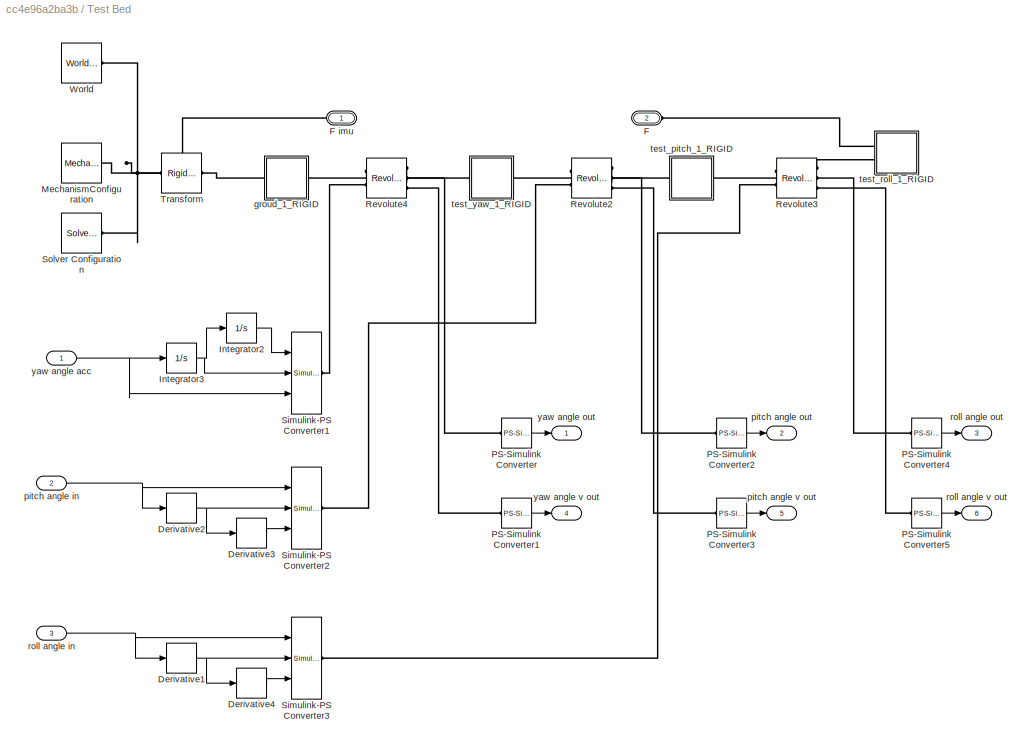
BLOCK [SubSystem] Test Bed
  Ports = [3, 6, 0, 0, 0, 1, 1]
  RequestExecContextInheritance = off
  Variant = off
BLOCK [Derivative] Test Bed/Derivative1
BLOCK [Derivative] Test Bed/Derivative2
BLOCK [Derivative] Test Bed/Derivative3
BLOCK [Derivative] Test Bed/Derivative4
BLOCK [PMIOPort] Test Bed/F
  Port = 2
  Side = Left
BLOCK [PMIOPort] Test Bed/F imu 
  Port = 1
  Side = Right
BLOCK [Integrator] Test Bed/Integrator2
  Ports = [1, 1]
BLOCK [Integrator] Test Bed/Integrator3
  Ports = [1, 1]
BLOCK [Reference] Test Bed/MechanismConfiguration  REF=sm_lib/Utilities/Mechanism
Configuration
  Ports = [0, 0, 0, 0, 0, 0, 1]
  SourceBlock = sm_lib/Utilities/Mechanism\nConfiguration
  SourceProductBaseCode = MS
  SourceProductName = Simscape Multibody
  SourceType = Mechanism\nConfiguration
BLOCK [Reference] Test Bed/PS-Simulink Converter  REF=nesl_utility/PS-Simulink
Converter
  Ports = [0, 1, 0, 0, 0, 1]
  SourceBlock = nesl_utility/PS-Simulink\nConverter
  SourceProductBaseCode = SS
  SourceProductName = Simscape
  SourceType = PS-Simulink\nConverter
BLOCK [Reference] Test Bed/PS-Simulink Converter1  REF=nesl_utility/PS-Simulink
Converter
  Ports = [0, 1, 0, 0, 0, 1]
  SourceBlock = nesl_utility/PS-Simulink\nConverter
  SourceProductBaseCode = SS
  SourceProductName = Simscape
  SourceType = PS-Simulink\nConverter
BLOCK [Reference] Test Bed/PS-Simulink Converter2  REF=nesl_utility/PS-Simulink
Converter
  Ports = [0, 1, 0, 0, 0, 1]
  SourceBlock = nesl_utility/PS-Simulink\nConverter
  SourceProductBaseCode = SS
  SourceProductName = Simscape
  SourceType = PS-Simulink\nConverter
BLOCK [Reference] Test Bed/PS-Simulink Converter3  REF=nesl_utility/PS-Simulink
Converter
  Ports = [0, 1, 0, 0, 0, 1]
  SourceBlock = nesl_utility/PS-Simulink\nConverter
  SourceProductBaseCode = SS
  SourceProductName = Simscape
  SourceType = PS-Simulink\nConverter
BLOCK [Reference] Test Bed/PS-Simulink Converter4  REF=nesl_utility/PS-Simulink
Converter
  Ports = [0, 1, 0, 0, 0, 1]
  SourceBlock = nesl_utility/PS-Simulink\nConverter
  SourceProductBaseCode = SS
  SourceProductName = Simscape
  SourceType = PS-Simulink\nConverter
BLOCK [Reference] Test Bed/PS-Simulink Converter5  REF=nesl_utility/PS-Simulink
Converter
  Ports = [0, 1, 0, 0, 0, 1]
  SourceBlock = nesl_utility/PS-Simulink\nConverter
  SourceProductBaseCode = SS
  SourceProductName = Simscape
  SourceType = PS-Simulink\nConverter
BLOCK [Reference] Test Bed/Revolute2  REF=sm_lib/Joints/Revolute Joint
  Ports = [0, 0, 0, 0, 0, 2, 3]
  SourceBlock = sm_lib/Joints/Revolute Joint
  SourceProductBaseCode = MS
  SourceProductName = Simscape Multibody
  SourceType = Revolute Joint
BLOCK [Reference] Test Bed/Revolute3  REF=sm_lib/Joints/Revolute Joint
  Ports = [0, 0, 0, 0, 0, 2, 3]
  SourceBlock = sm_lib/Joints/Revolute Joint
  SourceProductBaseCode = MS
  SourceProductName = Simscape Multibody
  SourceType = Revolute Joint
BLOCK [Reference] Test Bed/Revolute4  REF=sm_lib/Joints/Revolute Joint
  Ports = [0, 0, 0, 0, 0, 2, 3]
  SourceBlock = sm_lib/Joints/Revolute Joint
  SourceProductBaseCode = MS
  SourceProductName = Simscape Multibody
  SourceType = Revolute Joint
BLOCK [Reference] Test Bed/Simulink-PS Converter1  REF=nesl_utility/Simulink-PS
Converter
  Ports = [3, 0, 0, 0, 0, 0, 1]
  SourceBlock = nesl_utility/Simulink-PS\nConverter
  SourceProductBaseCode = SS
  SourceProductName = Simscape
  SourceType = Simulink-PS\nConverter
BLOCK [Reference] Test Bed/Simulink-PS Converter2  REF=nesl_utility/Simulink-PS
Converter
  Ports = [3, 0, 0, 0, 0, 0, 1]
  SourceBlock = nesl_utility/Simulink-PS\nConverter
  SourceProductBaseCode = SS
  SourceProductName = Simscape
  SourceType = Simulink-PS\nConverter
BLOCK [Reference] Test Bed/Simulink-PS Converter3  REF=nesl_utility/Simulink-PS
Converter
  Ports = [3, 0, 0, 0, 0, 0, 1]
  SourceBlock = nesl_utility/Simulink-PS\nConverter
  SourceProductBaseCode = SS
  SourceProductName = Simscape
  SourceType = Simulink-PS\nConverter
BLOCK [Reference] Test Bed/Solver Configuration  REF=nesl_utility/Solver
Configuration
  Ports = [0, 0, 0, 0, 0, 0, 1]
  SourceBlock = nesl_utility/Solver\nConfiguration
  SourceProductBaseCode = SS
  SourceProductName = Simscape
  SourceType = Solver\nConfiguration
BLOCK [Reference] Test Bed/Transform  REF=sm_lib/Frames and
Transforms/Rigid
Transform
  Ports = [0, 0, 0, 0, 0, 1, 1]
  SourceBlock = sm_lib/Frames and\nTransforms/Rigid\nTransform
  SourceProductBaseCode = MS
  SourceProductName = Simscape Multibody
  SourceType = Rigid\nTransform
BLOCK [Reference] Test Bed/World  REF=sm_lib/Frames and
Transforms/World Frame
  Ports = [0, 0, 0, 0, 0, 0, 1]
  SourceBlock = sm_lib/Frames and\nTransforms/World Frame
  SourceProductBaseCode = MS
  SourceProductName = Simscape Multibody
  SourceType = World Frame
BLOCK [SubSystem] Test Bed/groud_1_RIGID
  Ports = [0, 0, 0, 0, 0, 1, 1]
  RequestExecContextInheritance = off
  Variant = off
BLOCK [PMIOPort] Test Bed/groud_1_RIGID/F
  Port = 2
  Side = Right
BLOCK [PMIOPort] Test Bed/groud_1_RIGID/F1
  Port = 1
  Side = Left
BLOCK [Reference] Test Bed/groud_1_RIGID/ReferenceFrame  REF=sm_lib/Frames and
Transforms/Reference
Frame
  Ports = [0, 0, 0, 0, 0, 0, 1]
  SourceBlock = sm_lib/Frames and\nTransforms/Reference\nFrame
  SourceProductBaseCode = MS
  SourceProductName = Simscape Multibody
  SourceType = Reference\nFrame
BLOCK [Reference] Test Bed/groud_1_RIGID/Solid  REF=sm_lib/Body Elements/Solid
  Ports = [0, 0, 0, 0, 0, 0, 1]
  SourceBlock = sm_lib/Body Elements/Solid
  SourceProductBaseCode = MS
  SourceProductName = Simscape Multibody
  SourceType = Solid
BLOCK [Reference] Test Bed/groud_1_RIGID/Transform  REF=sm_lib/Frames and
Transforms/Rigid
Transform
  Ports = [0, 0, 0, 0, 0, 1, 1]
  SourceBlock = sm_lib/Frames and\nTransforms/Rigid\nTransform
  SourceProductBaseCode = MS
  SourceProductName = Simscape Multibody
  SourceType = Rigid\nTransform
BLOCK [Inport] Test Bed/pitch angle in
  IconDisplay = Port number
  Port = 2
BLOCK [Outport] Test Bed/pitch angle out
  IconDisplay = Port number
  Port = 2
BLOCK [Outport] Test Bed/pitch angle v out
  IconDisplay = Port number
  Port = 5
BLOCK [Inport] Test Bed/roll angle in
  IconDisplay = Port number
  Port = 3
BLOCK [Outport] Test Bed/roll angle out
  IconDisplay = Port number
  Port = 3
BLOCK [Outport] Test Bed/roll angle v out
  IconDisplay = Port number
  Port = 6
BLOCK [SubSystem] Test Bed/test_pitch_1_RIGID
  Ports = [0, 0, 0, 0, 0, 1, 1]
  RequestExecContextInheritance = off
  Variant = off
BLOCK [PMIOPort] Test Bed/test_pitch_1_RIGID/F
  Port = 1
  Side = Left
BLOCK [PMIOPort] Test Bed/test_pitch_1_RIGID/F1
  Port = 2
  Side = Right
BLOCK [Reference] Test Bed/test_pitch_1_RIGID/ReferenceFrame  REF=sm_lib/Frames and
Transforms/Reference
Frame
  Ports = [0, 0, 0, 0, 0, 0, 1]
  SourceBlock = sm_lib/Frames and\nTransforms/Reference\nFrame
  SourceProductBaseCode = MS
  SourceProductName = Simscape Multibody
  SourceType = Reference\nFrame
BLOCK [Reference] Test Bed/test_pitch_1_RIGID/Solid  REF=sm_lib/Body Elements/Solid
  Ports = [0, 0, 0, 0, 0, 0, 1]
  SourceBlock = sm_lib/Body Elements/Solid
  SourceProductBaseCode = MS
  SourceProductName = Simscape Multibody
  SourceType = Solid
BLOCK [Reference] Test Bed/test_pitch_1_RIGID/Transform  REF=sm_lib/Frames and
Transforms/Rigid
Transform
  Ports = [0, 0, 0, 0, 0, 1, 1]
  SourceBlock = sm_lib/Frames and\nTransforms/Rigid\nTransform
  SourceProductBaseCode = MS
  SourceProductName = Simscape Multibody
  SourceType = Rigid\nTransform
BLOCK [Reference] Test Bed/test_pitch_1_RIGID/Transform1  REF=sm_lib/Frames and
Transforms/Rigid
Transform
  Ports = [0, 0, 0, 0, 0, 1, 1]
  SourceBlock = sm_lib/Frames and\nTransforms/Rigid\nTransform
  SourceProductBaseCode = MS
  SourceProductName = Simscape Multibody
  SourceType = Rigid\nTransform
BLOCK [SubSystem] Test Bed/test_roll_1_RIGID
  Ports = [0, 0, 0, 0, 0, 2]
  RequestExecContextInheritance = off
  Variant = off
BLOCK [PMIOPort] Test Bed/test_roll_1_RIGID/F
  Port = 2
  Side = Left
BLOCK [PMIOPort] Test Bed/test_roll_1_RIGID/F1
  Port = 1
  Side = Left
BLOCK [Reference] Test Bed/test_roll_1_RIGID/ReferenceFrame  REF=sm_lib/Frames and
Transforms/Reference
Frame
  Ports = [0, 0, 0, 0, 0, 0, 1]
  SourceBlock = sm_lib/Frames and\nTransforms/Reference\nFrame
  SourceProductBaseCode = MS
  SourceProductName = Simscape Multibody
  SourceType = Reference\nFrame
BLOCK [Reference] Test Bed/test_roll_1_RIGID/Solid  REF=sm_lib/Body Elements/Solid
  Ports = [0, 0, 0, 0, 0, 0, 1]
  SourceBlock = sm_lib/Body Elements/Solid
  SourceProductBaseCode = MS
  SourceProductName = Simscape Multibody
  SourceType = Solid
BLOCK [Reference] Test Bed/test_roll_1_RIGID/Transform  REF=sm_lib/Frames and
Transforms/Rigid
Transform
  Ports = [0, 0, 0, 0, 0, 1, 1]
  SourceBlock = sm_lib/Frames and\nTransforms/Rigid\nTransform
  SourceProductBaseCode = MS
  SourceProductName = Simscape Multibody
  SourceType = Rigid\nTransform
BLOCK [Reference] Test Bed/test_roll_1_RIGID/Transform1  REF=sm_lib/Frames and
Transforms/Rigid
Transform
  Ports = [0, 0, 0, 0, 0, 1, 1]
  SourceBlock = sm_lib/Frames and\nTransforms/Rigid\nTransform
  SourceProductBaseCode = MS
  SourceProductName = Simscape Multibody
  SourceType = Rigid\nTransform
BLOCK [SubSystem] Test Bed/test_yaw_1_RIGID
  Ports = [0, 0, 0, 0, 0, 1, 1]
  RequestExecContextInheritance = off
  Variant = off
BLOCK [PMIOPort] Test Bed/test_yaw_1_RIGID/F
  Port = 2
  Side = Right
BLOCK [PMIOPort] Test Bed/test_yaw_1_RIGID/F1
  Port = 1
  Side = Left
BLOCK [Reference] Test Bed/test_yaw_1_RIGID/ReferenceFrame  REF=sm_lib/Frames and
Transforms/Reference
Frame
  Ports = [0, 0, 0, 0, 0, 0, 1]
  SourceBlock = sm_lib/Frames and\nTransforms/Reference\nFrame
  SourceProductBaseCode = MS
  SourceProductName = Simscape Multibody
  SourceType = Reference\nFrame
BLOCK [Reference] Test Bed/test_yaw_1_RIGID/Solid  REF=sm_lib/Body Elements/Solid
  Ports = [0, 0, 0, 0, 0, 0, 1]
  SourceBlock = sm_lib/Body Elements/Solid
  SourceProductBaseCode = MS
  SourceProductName = Simscape Multibody
  SourceType = Solid
BLOCK [Reference] Test Bed/test_yaw_1_RIGID/Transform  REF=sm_lib/Frames and
Transforms/Rigid
Transform
  Ports = [0, 0, 0, 0, 0, 1, 1]
  SourceBlock = sm_lib/Frames and\nTransforms/Rigid\nTransform
  SourceProductBaseCode = MS
  SourceProductName = Simscape Multibody
  SourceType = Rigid\nTransform
BLOCK [Reference] Test Bed/test_yaw_1_RIGID/Transform1  REF=sm_lib/Frames and
Transforms/Rigid
Transform
  Ports = [0, 0, 0, 0, 0, 1, 1]
  SourceBlock = sm_lib/Frames and\nTransforms/Rigid\nTransform
  SourceProductBaseCode = MS
  SourceProductName = Simscape Multibody
  SourceType = Rigid\nTransform
BLOCK [Inport] Test Bed/yaw angle acc
  IconDisplay = Port number
BLOCK [Outport] Test Bed/yaw angle out
  IconDisplay = Port number
BLOCK [Outport] Test Bed/yaw angle v out
  IconDisplay = Port number
  Port = 4
BLOCK [SubSystem] Tracking Feedback
  ErrorFcn = Stateflow.Translate.translate
  PermitHierarchicalResolution = ExplicitOnly
  Ports = [2, 1]
  RequestExecContextInheritance = off
  SFBlockType = MATLAB Function
  TreatAsAtomicUnit = on
  Variant = off
BLOCK [Demux] Tracking Feedback/ Demux 
  Outputs = 1
  Ports = [1, 1]
BLOCK [S-Function] Tracking Feedback/ SFunction 
  EnableBusSupport = on
  FunctionName = sf_sfun
  PortCounts = [2 2]
  Ports = [2, 2]
  SFcnIsStateOwnerBlock = off
  SFunctionDeploymentMode = off
  Tag = Stateflow S-Function gimbal_test_optm 3
BLOCK [Terminator] Tracking Feedback/ Terminator 
BLOCK [Inport] Tracking Feedback/enc
  IconDisplay = Port number
  Port = 2
BLOCK [Inport] Tracking Feedback/eular
  IconDisplay = Port number
BLOCK [Outport] Tracking Feedback/t_fb
  IconDisplay = Port number
BLOCK [DiscretePulseGenerator] Yaw Command
  Amplitude = 90
  Period = 3
  Ports = [0, 1]
  PulseType = Time based
  PulseWidth = 50
BLOCK [Gain] deg2rad
  Gain = -pi/180
  OutDataTypeStr = Inherit: Inherit via internal rule
  ParamDataTypeStr = Inherit: Inherit via internal rule
  SaturateOnIntegerOverflow = off
BLOCK [Gain] deg2rad1
  Gain = -pi/180
  OutDataTypeStr = Inherit: Inherit via internal rule
  ParamDataTypeStr = Inherit: Inherit via internal rule
  SaturateOnIntegerOverflow = off
BLOCK [Gain] deg2rad1 
  Gain = pi/180
  OutDataTypeStr = Inherit: Inherit via internal rule
  ParamDataTypeStr = Inherit: Inherit via internal rule
  SaturateOnIntegerOverflow = off
BLOCK [Constant] enc bias
  Value = [0.2 -0.3 0.2]
BLOCK [RandomNumber] enc noise
  SampleTime = 0.001
  Variance = 0.01
BLOCK [SubSystem] gradient decline
  Ports = [2, 2]
  RequestExecContextInheritance = off
  Variant = off
BLOCK [Delay] gradient decline/Delay
  DelayLength = 1
  InitialCondition = [1;0;0;0]
  InputPortMap = u0
  Ports = [1, 1]
BLOCK [SubSystem] gradient decline/Madgwick
  ErrorFcn = Stateflow.Translate.translate
  PermitHierarchicalResolution = ExplicitOnly
  Ports = [5, 1]
  RequestExecContextInheritance = off
  SFBlockType = MATLAB Function
  TreatAsAtomicUnit = on
  Variant = off
BLOCK [Demux] gradient decline/Madgwick/ Demux 
  Outputs = 1
  Ports = [1, 1]
BLOCK [S-Function] gradient decline/Madgwick/ SFunction 
  EnableBusSupport = on
  FunctionName = sf_sfun
  PortCounts = [5 2]
  Ports = [5, 2]
  SFcnIsStateOwnerBlock = off
  SFunctionDeploymentMode = off
  Tag = Stateflow S-Function gimbal_test_optm 15
BLOCK [Terminator] gradient decline/Madgwick/ Terminator 
BLOCK [Inport] gradient decline/Madgwick/a
  IconDisplay = Port number
  Port = 2
BLOCK [Inport] gradient decline/Madgwick/beta
  IconDisplay = Port number
  Port = 3
BLOCK [Inport] gradient decline/Madgwick/dt
  IconDisplay = Port number
  Port = 4
BLOCK [Inport] gradient decline/Madgwick/g
  IconDisplay = Port number
BLOCK [Outport] gradient decline/Madgwick/q
  IconDisplay = Port number
BLOCK [Inport] gradient decline/Madgwick/q_
  IconDisplay = Port number
  Port = 5
BLOCK [Inport] gradient decline/acc
  IconDisplay = Port number
  Port = 2
BLOCK [Constant] gradient decline/beta
BLOCK [Constant] gradient decline/dt
  Value = 0.001
BLOCK [Outport] gradient decline/euler 
  IconDisplay = Port number
  Port = 2
BLOCK [Inport] gradient decline/gyro
  IconDisplay = Port number
BLOCK [Outport] gradient decline/quat
  IconDisplay = Port number
BLOCK [SubSystem] gradient decline/quat to euler
  ErrorFcn = Stateflow.Translate.translate
  PermitHierarchicalResolution = ExplicitOnly
  Ports = [1, 1]
  RequestExecContextInheritance = off
  SFBlockType = MATLAB Function
  TreatAsAtomicUnit = on
  Variant = off
BLOCK [Demux] gradient decline/quat to euler/ Demux 
  Outputs = 1
  Ports = [1, 1]
BLOCK [S-Function] gradient decline/quat to euler/ SFunction 
  EnableBusSupport = on
  FunctionName = sf_sfun
  PortCounts = [1 2]
  Ports = [1, 2]
  SFcnIsStateOwnerBlock = off
  SFunctionDeploymentMode = off
  Tag = Stateflow S-Function gimbal_test_optm 1
BLOCK [Terminator] gradient decline/quat to euler/ Terminator 
BLOCK [Outport] gradient decline/quat to euler/euler
  IconDisplay = Port number
BLOCK [Inport] gradient decline/quat to euler/q
  IconDisplay = Port number
BLOCK [Scope] pitch
  NumInputPorts = 2
  Ports = [2]
  ScopeSpecificationString = Simulink.scopes.TimeScopeBlockCfg('CurrentConfiguration', extmgr.ConfigurationSet(extmgr.Configuration('Core','General UI',true),extmgr.Configuration('Core','Source UI',true),extmgr.Configuration('Sources','WiredSimulink',true,'DataLoggingVariableName','ScopeData3'),extmgr.Configuration('Visuals','Time Domain',true,'SerializedDisplays',{struct('MinYLimReal','-68.56495','MaxYLimReal','71.88889','YL...<+1430ch>
BLOCK [Constant] pitch init pos
  Value = 0
BLOCK [Gain] rad2deg
  Gain = 180/pi
  OutDataTypeStr = Inherit: Inherit via internal rule
  ParamDataTypeStr = Inherit: Inherit via internal rule
  SaturateOnIntegerOverflow = off
BLOCK [Scope] roll
  NumInputPorts = 2
  Ports = [2]
  ScopeSpecificationString = Simulink.scopes.TimeScopeBlockCfg('CurrentConfiguration', extmgr.ConfigurationSet(extmgr.Configuration('Core','General UI',true),extmgr.Configuration('Core','Source UI',true),extmgr.Configuration('Sources','WiredSimulink',true,'DataLoggingVariableName','ScopeData2'),extmgr.Configuration('Visuals','Time Domain',true,'SerializedDisplays',{struct('MinYLimReal','-16.79691','MaxYLimReal','71.12273','YL...<+1432ch>
BLOCK [Constant] roll init pos
  Value = -pi/2
BLOCK [Scope] yaw
  NumInputPorts = 2
  Ports = [2]
  ScopeSpecificationString = Simulink.scopes.TimeScopeBlockCfg('CurrentConfiguration', extmgr.ConfigurationSet(extmgr.Configuration('Core','General UI',true),extmgr.Configuration('Core','Source UI',true),extmgr.Configuration('Sources','WiredSimulink',true,'DataLoggingVariableName','ScopeData1'),extmgr.Configuration('Visuals','Time Domain',true,'SerializedDisplays',{struct('MinYLimReal','-56.25','MaxYLimReal','56.25','YLabelRe...<+1413ch>
LINE Camera State/Gain:1 -> Camera State/quaternion :1
NET Camera State/Integrator:1 -> Camera State/MATLAB Function:1, Camera State/attitude_body (rad):1
NET Camera State/MATLAB Function1:1 -> Camera State/Scope1:1, Camera State/acc (m//ss):1
NET Camera State/MATLAB Function2:1 -> Camera State/Integrator:1, Camera State/gyro (rad//s):1
LINE Camera State/MATLAB Function:1 -> Camera State/attitude_earth (rad):1
NET Camera State/Mux1:1 -> Camera State/Scope:1, Camera State/Sum1:1
LINE Camera State/Mux:1 -> Camera State/MATLAB Function2:1
LINE Camera State/PS-Simulink Converter1:1 -> Camera State/Gain:1
LINE Camera State/PS-Simulink Converter2:1 -> Camera State/Mux1:1
LINE Camera State/PS-Simulink Converter3:1 -> Camera State/Mux1:2
LINE Camera State/PS-Simulink Converter4:1 -> Camera State/Mux1:3
NET Camera State/PS-Simulink Converter6:1 -> Camera State/MATLAB Function1:2, Camera State/MATLAB Function2:2, Camera State/MATLAB Function:2, Camera State/RM:1
LINE Camera State/PS-Simulink Converter7:1 -> Camera State/Mux:1
LINE Camera State/PS-Simulink Converter8:1 -> Camera State/Mux:2
LINE Camera State/PS-Simulink Converter9:1 -> Camera State/Mux:3
LINE Camera State/Sum1:1 -> Camera State/Scope2:1
LINE Camera State/Sum:1 -> Camera State/MATLAB Function1:1
NET Camera State/gravity :1 -> Camera State/Sum1:2, Camera State/Sum:2
NET Camera State:1 -> PID Controller:3, gradient decline:1
LINE Camera State:2 -> gradient decline:2
LINE Clock:1 -> Switch:2
LINE Demux:1 -> roll:2
LINE Demux:2 -> pitch:2
LINE Demux:3 -> yaw:2
LINE Gain:1 -> Test Bed:1
LINE Gimbal Mechanical/Constant1:1 -> Gimbal Mechanical/Pitch Enc1:2
LINE Gimbal Mechanical/Constant2:1 -> Gimbal Mechanical/Pitch Enc:2
LINE Gimbal Mechanical/Constant4:1 -> Gimbal Mechanical/Pitch Enc2:2
LINE Gimbal Mechanical/Demux:1 -> Gimbal Mechanical/i2f4:1
LINE Gimbal Mechanical/Demux:2 -> Gimbal Mechanical/i2f1:1
LINE Gimbal Mechanical/Demux:3 -> Gimbal Mechanical/i2f2:1
LINE Gimbal Mechanical/Gain6:1 -> Gimbal Mechanical/Mux2:1
LINE Gimbal Mechanical/Gain7:1 -> Gimbal Mechanical/Mux2:3
LINE Gimbal Mechanical/Gain8:1 -> Gimbal Mechanical/Mux2:2
LINE Gimbal Mechanical/Mux2:1 -> Gimbal Mechanical/encoder (rad):1
LINE Gimbal Mechanical/PS-Simulink Converter2:1 -> Gimbal Mechanical/Pitch Enc1:1
LINE Gimbal Mechanical/PS-Simulink Converter4:1 -> Gimbal Mechanical/Pitch Enc:1
LINE Gimbal Mechanical/PS-Simulink Converter:1 -> Gimbal Mechanical/Pitch Enc2:1
LINE Gimbal Mechanical/Pitch Enc1:1 -> Gimbal Mechanical/Gain6:1
LINE Gimbal Mechanical/Pitch Enc2:1 -> Gimbal Mechanical/Gain7:1
LINE Gimbal Mechanical/Pitch Enc:1 -> Gimbal Mechanical/Gain8:1
LINE Gimbal Mechanical/i2f1:1 -> Gimbal Mechanical/Simulink-PS Converter5:1
LINE Gimbal Mechanical/i2f2:1 -> Gimbal Mechanical/Simulink-PS Converter3:1
LINE Gimbal Mechanical/i2f4:1 -> Gimbal Mechanical/Simulink-PS Converter4:1
LINE Gimbal Mechanical/motor in:1 -> Gimbal Mechanical/Demux:1
LINE Gimbal Mechanical:1 -> Noise&Bias:3
LINE Gimbal Mode:1 -> PID Controller:2
LINE Manual Switch:1 -> deg2rad:1
LINE Mux1:1 -> deg2rad1 :1
LINE Noise&Bias/Gain3:1 -> Noise&Bias/Sum4:1
LINE Noise&Bias/Gain4:1 -> Noise&Bias/Sum3:1
LINE Noise&Bias/Sum3:1 -> Noise&Bias/Sum4:2
LINE Noise&Bias/Sum4:1 -> Noise&Bias/noise enc:1
LINE Noise&Bias/bias:1 -> Noise&Bias/Gain3:1
LINE Noise&Bias/noise:1 -> Noise&Bias/Gain4:1
LINE Noise&Bias/raw enc:1 -> Noise&Bias/Sum3:2
NET Noise&Bias:1 -> Output Maping:2, Tracking Feedback:2
LINE Output Maping:1 -> Gimbal Mechanical:1
LINE PID Controller/Angle PID/Demux1:1 -> PID Controller/Angle PID/PID Controller Roll:1
LINE PID Controller/Angle PID/Demux1:2 -> PID Controller/Angle PID/PID Controller Pitch:1
LINE PID Controller/Angle PID/Demux1:3 -> PID Controller/Angle PID/PID Controller Yaw:1
LINE PID Controller/Angle PID/Err:1 -> PID Controller/Angle PID/Demux1:1
LINE PID Controller/Angle PID/Mux1:1 -> PID Controller/Angle PID/Output:1
LINE PID Controller/Angle PID/PID Controller Pitch:1 -> PID Controller/Angle PID/Mux1:2
LINE PID Controller/Angle PID/PID Controller Roll:1 -> PID Controller/Angle PID/Mux1:1
LINE PID Controller/Angle PID/PID Controller Yaw:1 -> PID Controller/Angle PID/Mux1:3
LINE PID Controller/Angle PID:1 -> PID Controller/Sum2:1
LINE PID Controller/Angle Vel PID/Demux2:1 -> PID Controller/Angle Vel PID/PID Controller1:1
LINE PID Controller/Angle Vel PID/Demux2:2 -> PID Controller/Angle Vel PID/PID Controller2:1
LINE PID Controller/Angle Vel PID/Demux2:3 -> PID Controller/Angle Vel PID/PID Controller:1
LINE PID Controller/Angle Vel PID/Err:1 -> PID Controller/Angle Vel PID/Demux2:1
LINE PID Controller/Angle Vel PID/Mux2:1 -> PID Controller/Angle Vel PID/Output:1
LINE PID Controller/Angle Vel PID/PID Controller1:1 -> PID Controller/Angle Vel PID/Mux2:1
LINE PID Controller/Angle Vel PID/PID Controller2:1 -> PID Controller/Angle Vel PID/Mux2:2
LINE PID Controller/Angle Vel PID/PID Controller:1 -> PID Controller/Angle Vel PID/Mux2:3
LINE PID Controller/Angle Vel PID:1 -> PID Controller/output:1
LINE PID Controller/Sum1:1 -> PID Controller/earth2camera:1
LINE PID Controller/Sum2:1 -> PID Controller/Angle Vel PID:1
LINE PID Controller/angle feedback:1 -> PID Controller/Sum1:2
LINE PID Controller/angle setpoint:1 -> PID Controller/Sum1:1
LINE PID Controller/angle v feedback:1 -> PID Controller/Sum2:2
LINE PID Controller/earth2camera:1 -> PID Controller/Angle PID:1
LINE PID Controller/quat:1 -> PID Controller/earth2camera:2
LINE PID Controller:1 -> Output Maping:1
LINE Ramp:1 -> Saturation:1
NET Roll Command:1 -> Mux1:1, Mux1:2, Mux1:3, roll:1
LINE Saturation:1 -> Manual Switch:1
LINE Signal Builder1:1 -> Switch:3
LINE Signal Builder1:2 -> Switch:1
LINE Sine Wave1:1 -> deg2rad1:1
NET Sine Wave2:1 -> pitch:1, yaw:1
LINE Sine Wave:1 -> Manual Switch:2
LINE Sum1:1 -> Test Bed:2
LINE Sum2:1 -> Test Bed:3
LINE Switch:1 -> Gain:1
NET Test Bed/Derivative1:1 -> Test Bed/Derivative4:1, Test Bed/Simulink-PS Converter3:2
NET Test Bed/Derivative2:1 -> Test Bed/Derivative3:1, Test Bed/Simulink-PS Converter2:2
LINE Test Bed/Derivative3:1 -> Test Bed/Simulink-PS Converter2:3
LINE Test Bed/Derivative4:1 -> Test Bed/Simulink-PS Converter3:3
LINE Test Bed/Integrator2:1 -> Test Bed/Simulink-PS Converter1:1
NET Test Bed/Integrator3:1 -> Test Bed/Integrator2:1, Test Bed/Simulink-PS Converter1:2
LINE Test Bed/PS-Simulink Converter1:1 -> Test Bed/yaw angle v out:1
LINE Test Bed/PS-Simulink Converter2:1 -> Test Bed/pitch angle out:1
LINE Test Bed/PS-Simulink Converter3:1 -> Test Bed/pitch angle v out:1
LINE Test Bed/PS-Simulink Converter4:1 -> Test Bed/roll angle out:1
LINE Test Bed/PS-Simulink Converter5:1 -> Test Bed/roll angle v out:1
LINE Test Bed/PS-Simulink Converter:1 -> Test Bed/yaw angle out:1
NET Test Bed/pitch angle in:1 -> Test Bed/Derivative2:1, Test Bed/Simulink-PS Converter2:1
NET Test Bed/roll angle in:1 -> Test Bed/Derivative1:1, Test Bed/Simulink-PS Converter3:1
NET Test Bed/yaw angle acc:1 -> Test Bed/Integrator3:1, Test Bed/Simulink-PS Converter1:3
LINE Tracking Feedback:1 -> Gimbal Mode:2
LINE deg2rad1 :1 -> PID Controller:1
LINE enc bias:1 -> Noise&Bias:1
LINE enc noise:1 -> Noise&Bias:2
LINE gradient decline/Delay:1 -> gradient decline/Madgwick:5
NET gradient decline/Madgwick:1 -> gradient decline/Delay:1, gradient decline/quat to euler:1, gradient decline/quat:1
LINE gradient decline/acc:1 -> gradient decline/Madgwick:2
LINE gradient decline/beta:1 -> gradient decline/Madgwick:3
LINE gradient decline/dt:1 -> gradient decline/Madgwick:4
LINE gradient decline/gyro:1 -> gradient decline/Madgwick:1
LINE gradient decline/quat to euler:1 -> gradient decline/euler :1
LINE gradient decline:1 -> PID Controller:4
NET gradient decline:2 -> Gimbal Mode:1, Tracking Feedback:1, rad2deg:1
LINE pitch init pos:1 -> Sum1:1
LINE rad2deg:1 -> Demux:1
LINE roll init pos:1 -> Sum2:1
PLINE Camera State/B:RConn1 -- Camera State/Transform Sensor:LConn1
PLINE Camera State/F:RConn1 -- Camera State/Transform Sensor:RConn1
PLINE Camera State/PS-Simulink Converter1:LConn1 -- Camera State/Transform Sensor:RConn2
PLINE Camera State/PS-Simulink Converter2:LConn1 -- Camera State/Transform Sensor:RConn7
PLINE Camera State/PS-Simulink Converter3:LConn1 -- Camera State/Transform Sensor:RConn8
PLINE Camera State/PS-Simulink Converter4:LConn1 -- Camera State/Transform Sensor:RConn9
PLINE Camera State/PS-Simulink Converter6:LConn1 -- Camera State/Transform Sensor:RConn3
PLINE Camera State/PS-Simulink Converter7:LConn1 -- Camera State/Transform Sensor:RConn4
PLINE Camera State/PS-Simulink Converter8:LConn1 -- Camera State/Transform Sensor:RConn5
PLINE Camera State/PS-Simulink Converter9:LConn1 -- Camera State/Transform Sensor:RConn6
PLINE Camera State:RConn1 -- Gimbal Mechanical:LConn1
PLINE Camera State:RConn2 -- Test Bed:RConn1
PLINE Gimbal Mechanical/B body:RConn1 -- Gimbal Mechanical/groud_2_RIGID:RConn2
PLINE Gimbal Mechanical/B imu:RConn1 -- Gimbal Mechanical/pitch_1_RIGID:LConn1
PLINE Gimbal Mechanical/B:RConn1 -- Gimbal Mechanical/groud_2_RIGID:LConn1
PLINE Gimbal Mechanical/PS-Simulink Converter2:LConn1 -- Gimbal Mechanical/Revolute1:RConn2
PLINE Gimbal Mechanical/PS-Simulink Converter4:LConn1 -- Gimbal Mechanical/Revolute5:RConn2
PLINE Gimbal Mechanical/PS-Simulink Converter:LConn1 -- Gimbal Mechanical/Revolute:RConn2
PLINE Gimbal Mechanical/Revolute1:LConn1 -- Gimbal Mechanical/yaw_1_RIGID:RConn1
PLINE Gimbal Mechanical/Revolute1:LConn2 -- Gimbal Mechanical/Simulink-PS Converter4:RConn1
PLINE Gimbal Mechanical/Revolute1:RConn1 -- Gimbal Mechanical/roll_1_RIGID:LConn1
PLINE Gimbal Mechanical/Revolute5:LConn1 -- Gimbal Mechanical/roll_1_RIGID:RConn1
PLINE Gimbal Mechanical/Revolute5:LConn2 -- Gimbal Mechanical/Simulink-PS Converter5:RConn1
PLINE Gimbal Mechanical/Revolute5:RConn1 -- Gimbal Mechanical/pitch_1_RIGID:LConn2
PLINE Gimbal Mechanical/Revolute:LConn1 -- Gimbal Mechanical/groud_2_RIGID:RConn1
PLINE Gimbal Mechanical/Revolute:LConn2 -- Gimbal Mechanical/Simulink-PS Converter3:RConn1
PLINE Gimbal Mechanical/Revolute:RConn1 -- Gimbal Mechanical/yaw_1_RIGID:LConn1
PLINE Gimbal Mechanical/groud_2_RIGID/F1:RConn1 -- Gimbal Mechanical/groud_2_RIGID/Transform1:RConn1
PLINE Gimbal Mechanical/groud_2_RIGID/F:RConn1 -- Gimbal Mechanical/groud_2_RIGID/Transform:RConn1
PNET net1: Gimbal Mechanical/groud_2_RIGID/ReferenceFrame:RConn1 -- Gimbal Mechanical/groud_2_RIGID/Solid:RConn1 -- Gimbal Mechanical/groud_2_RIGID/Transform1:LConn1 -- Gimbal Mechanical/groud_2_RIGID/Transform:LConn1 -- Gimbal Mechanical/groud_2_RIGID/correct :LConn1
PLINE Gimbal Mechanical/groud_2_RIGID/body att :RConn1 -- Gimbal Mechanical/groud_2_RIGID/correct :RConn1
PLINE Gimbal Mechanical/load_1_RIGID/F:RConn1 -- Gimbal Mechanical/load_1_RIGID/Transform:RConn1
PNET net2: Gimbal Mechanical/load_1_RIGID/ReferenceFrame:RConn1 -- Gimbal Mechanical/load_1_RIGID/Solid:RConn1 -- Gimbal Mechanical/load_1_RIGID/Transform:LConn1
PLINE Gimbal Mechanical/load_1_RIGID:LConn1 -- Gimbal Mechanical/pitch_1_RIGID:LConn3
PNET net3: Gimbal Mechanical/pitch_1_RIGID/B:RConn1 -- Gimbal Mechanical/pitch_1_RIGID/ReferenceFrame:RConn1 -- Gimbal Mechanical/pitch_1_RIGID/Solid:RConn1 -- Gimbal Mechanical/pitch_1_RIGID/Transform1:LConn1 -- Gimbal Mechanical/pitch_1_RIGID/Transform:LConn1
PLINE Gimbal Mechanical/pitch_1_RIGID/F1:RConn1 -- Gimbal Mechanical/pitch_1_RIGID/Transform1:RConn1
PLINE Gimbal Mechanical/pitch_1_RIGID/F:RConn1 -- Gimbal Mechanical/pitch_1_RIGID/Transform:RConn1
PLINE Gimbal Mechanical/roll_1_RIGID/F1:RConn1 -- Gimbal Mechanical/roll_1_RIGID/Transform1:RConn1
PLINE Gimbal Mechanical/roll_1_RIGID/F:RConn1 -- Gimbal Mechanical/roll_1_RIGID/Transform:RConn1
PNET net4: Gimbal Mechanical/roll_1_RIGID/ReferenceFrame:RConn1 -- Gimbal Mechanical/roll_1_RIGID/Solid:RConn1 -- Gimbal Mechanical/roll_1_RIGID/Transform1:LConn1 -- Gimbal Mechanical/roll_1_RIGID/Transform:LConn1
PLINE Gimbal Mechanical/yaw_1_RIGID/F1:RConn1 -- Gimbal Mechanical/yaw_1_RIGID/Transform1:RConn1
PLINE Gimbal Mechanical/yaw_1_RIGID/F:RConn1 -- Gimbal Mechanical/yaw_1_RIGID/Transform:RConn1
PNET net5: Gimbal Mechanical/yaw_1_RIGID/ReferenceFrame:RConn1 -- Gimbal Mechanical/yaw_1_RIGID/Solid:RConn1 -- Gimbal Mechanical/yaw_1_RIGID/Transform1:LConn1 -- Gimbal Mechanical/yaw_1_RIGID/Transform:LConn1
PLINE Gimbal Mechanical:RConn1 -- Test Bed:LConn1
PNET net6: Test Bed/F imu :RConn1 -- Test Bed/MechanismConfiguration:RConn1 -- Test Bed/Solver Configuration:RConn1 -- Test Bed/Transform:LConn1 -- Test Bed/World:RConn1
PLINE Test Bed/F:RConn1 -- Test Bed/test_roll_1_RIGID:LConn1
PLINE Test Bed/PS-Simulink Converter1:LConn1 -- Test Bed/Revolute4:RConn3
PLINE Test Bed/PS-Simulink Converter2:LConn1 -- Test Bed/Revolute2:RConn2
PLINE Test Bed/PS-Simulink Converter3:LConn1 -- Test Bed/Revolute2:RConn3
PLINE Test Bed/PS-Simulink Converter4:LConn1 -- Test Bed/Revolute3:RConn2
PLINE Test Bed/PS-Simulink Converter5:LConn1 -- Test Bed/Revolute3:RConn3
PLINE Test Bed/PS-Simulink Converter:LConn1 -- Test Bed/Revolute4:RConn2
PLINE Test Bed/Revolute2:LConn1 -- Test Bed/test_yaw_1_RIGID:RConn1
PLINE Test Bed/Revolute2:LConn2 -- Test Bed/Simulink-PS Converter2:RConn1
PLINE Test Bed/Revolute2:RConn1 -- Test Bed/test_pitch_1_RIGID:LConn1
PLINE Test Bed/Revolute3:LConn1 -- Test Bed/test_pitch_1_RIGID:RConn1
PLINE Test Bed/Revolute3:LConn2 -- Test Bed/Simulink-PS Converter3:RConn1
PLINE Test Bed/Revolute3:RConn1 -- Test Bed/test_roll_1_RIGID:LConn2
PLINE Test Bed/Revolute4:LConn1 -- Test Bed/groud_1_RIGID:RConn1
PLINE Test Bed/Revolute4:LConn2 -- Test Bed/Simulink-PS Converter1:RConn1
PLINE Test Bed/Revolute4:RConn1 -- Test Bed/test_yaw_1_RIGID:LConn1
PLINE Test Bed/Transform:RConn1 -- Test Bed/groud_1_RIGID:LConn1
PNET net7: Test Bed/groud_1_RIGID/F1:RConn1 -- Test Bed/groud_1_RIGID/ReferenceFrame:RConn1 -- Test Bed/groud_1_RIGID/Solid:RConn1 -- Test Bed/groud_1_RIGID/Transform:LConn1
PLINE Test Bed/groud_1_RIGID/F:RConn1 -- Test Bed/groud_1_RIGID/Transform:RConn1
PLINE Test Bed/test_pitch_1_RIGID/F1:RConn1 -- Test Bed/test_pitch_1_RIGID/Transform1:RConn1
PLINE Test Bed/test_pitch_1_RIGID/F:RConn1 -- Test Bed/test_pitch_1_RIGID/Transform:RConn1
PNET net8: Test Bed/test_pitch_1_RIGID/ReferenceFrame:RConn1 -- Test Bed/test_pitch_1_RIGID/Solid:RConn1 -- Test Bed/test_pitch_1_RIGID/Transform1:LConn1 -- Test Bed/test_pitch_1_RIGID/Transform:LConn1
PLINE Test Bed/test_roll_1_RIGID/F1:RConn1 -- Test Bed/test_roll_1_RIGID/Transform1:RConn1
PLINE Test Bed/test_roll_1_RIGID/F:RConn1 -- Test Bed/test_roll_1_RIGID/Transform:RConn1
PNET net9: Test Bed/test_roll_1_RIGID/ReferenceFrame:RConn1 -- Test Bed/test_roll_1_RIGID/Solid:RConn1 -- Test Bed/test_roll_1_RIGID/Transform1:LConn1 -- Test Bed/test_roll_1_RIGID/Transform:LConn1
PLINE Test Bed/test_yaw_1_RIGID/F1:RConn1 -- Test Bed/test_yaw_1_RIGID/Transform1:RConn1
PLINE Test Bed/test_yaw_1_RIGID/F:RConn1 -- Test Bed/test_yaw_1_RIGID/Transform:RConn1
PNET net10: Test Bed/test_yaw_1_RIGID/ReferenceFrame:RConn1 -- Test Bed/test_yaw_1_RIGID/Solid:RConn1 -- Test Bed/test_yaw_1_RIGID/Transform1:LConn1 -- Test Bed/test_yaw_1_RIGID/Transform:LConn1
note: NET lines group one-source signal fan-out (src -> all destinations, sorted); 1:1 wires keep LINE; PNET lines group multi-terminal physical nets as a canonical sorted terminal list (undirected conserving connections); 2-terminal nets keep the pairwise PLINE form
CHART gradient decline/quat to euler states=1 transitions=1
  STATE_LABEL 'eML_blk_kernel()'
  STATE_LABEL 'SCRIPT:\nfunction euler = quat2euler(q)\nw = q(1);\nx = -q(2);\ny = -q(3);\nz = -q(4);\neuler = [asin(2*(y*z-w*x)); atan2(-2*(x*z+w*y), 2*w*w-1+2*z*z); atan2(-2*(x*y+w*z), 2*w*w-1+2*y*y)];\n\n'
CHART PID Controller/earth2camera states=1 transitions=1
  STATE_LABEL 'eML_blk_kernel()'
  STATE_LABEL 'SCRIPT:\nfunction vc = fcn(ve, q)\nq1 = q(1);\nq2 = q(2);\nq3 = q(3);\nq4 = q(4);\nR = [2*(0.5-q3*q3-q4*q4) 2*(q1*q4+q2*q3) 2*(q2*q4-q1*q3);\n      2*(q2*q3-q1*q4) 2*(0.5-q2*q2-q4*q4) 2*(q1*q2+q3*q4);\n      2*(q1*q3+q2*q4) 2*(q3*q4-q1*q2) 2*(0.5-q2*q2-q3*q3);];\nvc = R*ve;\n'
CHART Tracking Feedback states=1 transitions=1
  STATE_LABEL 'eML_blk_kernel()'
  STATE_LABEL 'SCRIPT:\nfunction t_fb = fcn(eular, enc)\nx = enc(1);\ny = enc(2);\nz = enc(3);\nt_fb = [eular(1);\n        eular(2);\n        z*cos(y) + x*sin(y);];\n\n'
CHART Gimbal Mechanical/Pitch Enc states=1 transitions=1
  STATE_LABEL 'eML_blk_kernel()'
  STATE_LABEL 'SCRIPT:\nfunction y = enc(angle, bias)\n%#codegen\nwhile angle>pi\n    angle = angle - 2*pi;\nend\nwhile angle<-pi\n    angle = angle + 2*pi;\nend\nangle = angle + bias;\nif angle>pi\n    angle = angle - 2*pi;\nend\nif angle<-pi\n    angle = angle + 2*pi;\nend\ny = angle;\n'  <repeated x3 — deduplicated; at blocks: Pitch Enc, Pitch Enc1, Pitch Enc2>
CHART Gimbal Mechanical/Pitch Enc1 states=1 transitions=1
  STATE_LABEL 'eML_blk_kernel()'
CHART Gimbal Mechanical/Pitch Enc2 states=1 transitions=1
  STATE_LABEL 'eML_blk_kernel()'
CHART Camera State/MATLAB Function states=1 transitions=1
  STATE_LABEL 'eML_blk_kernel()'
  STATE_LABEL 'SCRIPT:\nfunction att_e = att_earth(att, RM)\natt_e = RM*att;\n'
CHART Camera State/MATLAB Function2 states=1 transitions=1
  STATE_LABEL 'eML_blk_kernel()'
  STATE_LABEL 'SCRIPT:\nfunction gyro = fcn(w, RM)\n%#codegen\ngyro = inv(RM)*w;\n'
CHART Camera State/MATLAB Function1 states=1 transitions=1
  STATE_LABEL 'eML_blk_kernel()'
  STATE_LABEL 'SCRIPT:\nfunction acc = fcn(a, RM)\n%#codegen\nacc = inv(RM)*a;\n'
CHART gradient decline/Madgwick states=1 transitions=1
  STATE_LABEL 'eML_blk_kernel()'
  STATE_LABEL 'SCRIPT:\nfunction q = madgwick(g,a,beta,dt,q_)\nq = [1;0;0;0];\nwx = g(1);\nwy = g(2);\nwz = g(3);\nnorm_acc = norm(a);\nax = a(1)/norm_acc;\nay = a(2)/norm_acc;\naz = a(3)/norm_acc;\nq1 = q_(1,1);\nq2 = q_(2,1);\nq3 = q_(3,1);\nq4 = q_(4,1);\n% comput angle rate 0.5*q*w\nqdot = 0.5*[ -q2*wx - q3*wy - q4*wz;\n              q1*wx + q3*wz - q4*wy;\n              q1*wy - q2*wz + q4*wx;\n              q1*wz + q2*wy - q...<+726ch>'
CHART Output Maping states=1 transitions=1
  STATE_LABEL 'eML_blk_kernel()'
  STATE_LABEL 'SCRIPT:\nfunction mot = euler2mot(angle_v, enc)\nx = enc(1);\ny = enc(2);\nix = angle_v(1);\niy = angle_v(2);\niz = angle_v(3);\n\nmot = [cos(y)*ix + sin(y)*iz;\n       iy;%sin(y)*ix + iy + cos(y)*iz;\n       -sin(y)*ix/cos(x) + cos(y)*iz/cos(x);];\n'
